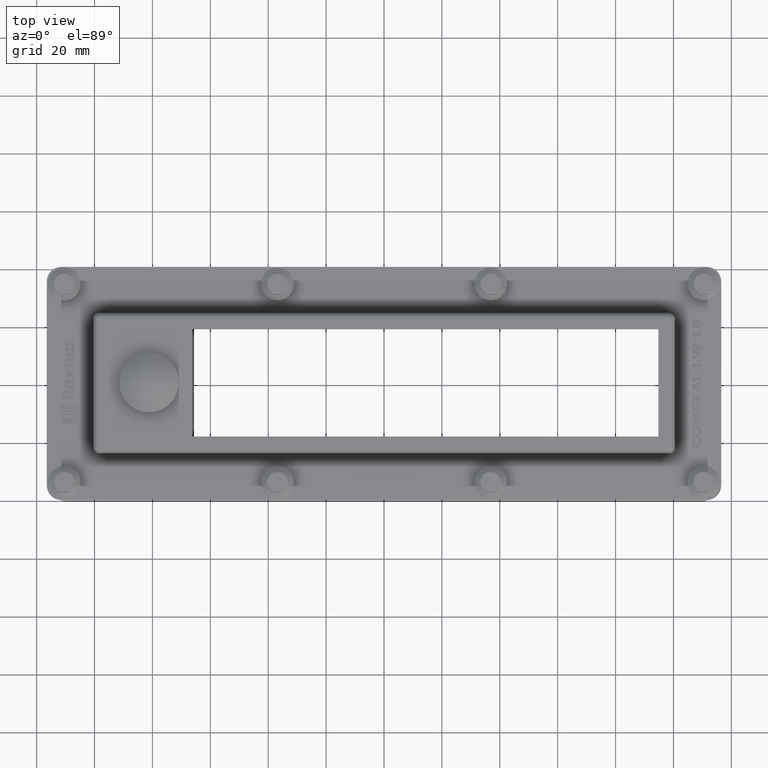
[diagram: clean part render]
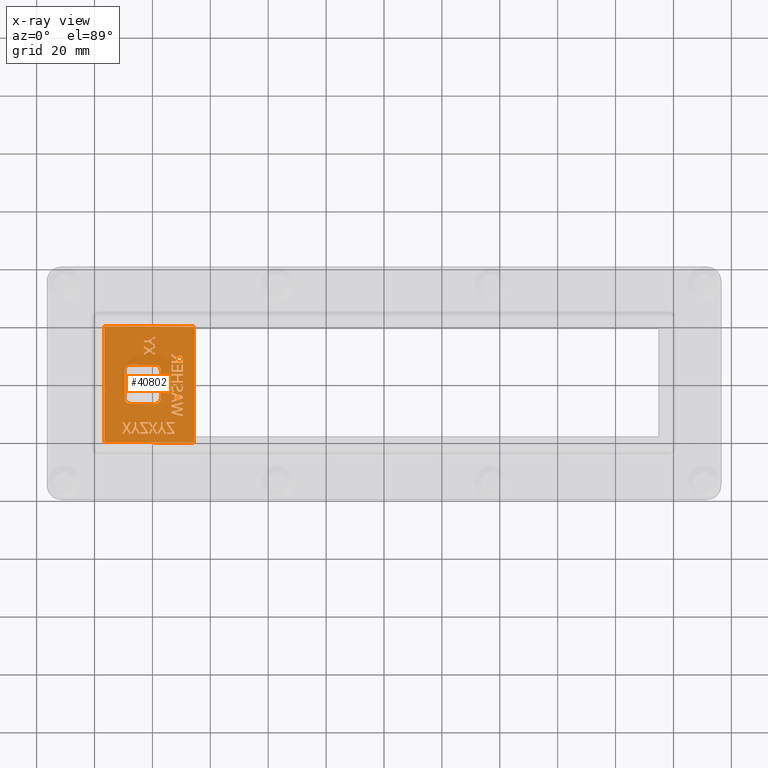
[diagram: x-ray — body ghosted, one internal face saturated and labeled with its STEP entity id]
A machine part, top view, then the same camera in x-ray: the body is ghosted and one INTERNAL B-rep face — a face not visible from any outside direction — is saturated and labeled: STEP entity #40802.
In plain terms, the highlighted planar face has unit normal (-0.2672, 0, -0.9636).
Its self-contained STEP definition (entity closure, byte-faithful):
#35229=CARTESIAN_POINT('',(-8.669368202334669,9.286606070014777,-15.59278335462421));
#35230=VERTEX_POINT('',#35229);
#35237=CARTESIAN_POINT('',(-9.93354974467325,7.749265428928553,-15.18085417135361));
#35238=VERTEX_POINT('',#35237);
#35239=CARTESIAN_POINT('',(-9.93354974467325,7.749265428928553,-15.18085417135361));
#35240=DIRECTION('',(0.621968436201278,0.756360793463459,-0.202666263795098));
#35241=VECTOR('',#35240,2.032549352600064);
#35242=LINE('',#35239,#35241);
#35243=EDGE_CURVE('',#35238,#35230,#35242,.T.);
#35267=CARTESIAN_POINT('',(-8.059967869104785,9.286606070014777,-15.59278335462421));
#35268=VERTEX_POINT('',#35267);
#35275=CARTESIAN_POINT('',(-8.669368202334667,9.286606070014777,-15.59278335462421));
#35276=DIRECTION('',(1.0,0.0,0.0));
#35277=VECTOR('',#35276,0.609400333229882);
#35278=LINE('',#35275,#35277);
#35279=EDGE_CURVE('',#35230,#35268,#35278,.T.);
#35298=CARTESIAN_POINT('',(-8.059967869104785,7.749265428928553,-15.18085417135361));
#35299=VERTEX_POINT('',#35298);
#35306=CARTESIAN_POINT('',(-8.059967869104785,9.286606070014781,-15.59278335462421));
#35307=DIRECTION('',(0.0,-0.965925826289068,0.258819045102521));
#35308=VECTOR('',#35307,1.591572146892936);
#35309=LINE('',#35306,#35308);
#35310=EDGE_CURVE('',#35268,#35299,#35309,.T.);
#35329=CARTESIAN_POINT('',(-7.528363323095739,7.749265428928553,-15.18085417135361));
#35330=VERTEX_POINT('',#35329);
#35337=CARTESIAN_POINT('',(-8.059967869104785,7.749265428928553,-15.18085417135361));
#35338=DIRECTION('',(1.0,0.0,0.0));
#35339=VECTOR('',#35338,0.531604546009046);
#35340=LINE('',#35337,#35339);
#35341=EDGE_CURVE('',#35299,#35330,#35340,.T.);
#35360=CARTESIAN_POINT('',(-7.528363323095739,11.612968791658492,-16.216130367190512));
#35361=VERTEX_POINT('',#35360);
#35368=CARTESIAN_POINT('',(-7.528363323095739,7.749265428928554,-15.180854171353609));
#35369=DIRECTION('',(0.0,0.965925826289068,-0.258819045102522));
#35370=VECTOR('',#35369,4.000000059604645);
#35371=LINE('',#35368,#35370);
#35372=EDGE_CURVE('',#35330,#35361,#35371,.T.);
#35391=CARTESIAN_POINT('',(-8.559157503771818,11.612968791658492,-16.216130367190512));
#35392=VERTEX_POINT('',#35391);
#35399=CARTESIAN_POINT('',(-7.528363323095739,11.612968791658488,-16.216130367190512));
#35400=DIRECTION('',(-1.0,0.0,0.0));
#35401=VECTOR('',#35400,1.030794180676079);
#35402=LINE('',#35399,#35401);
#35403=EDGE_CURVE('',#35361,#35392,#35402,.T.);
#35427=CARTESIAN_POINT('',(-9.576985719911084,11.409451191514695,-16.161597990586461));
#35428=VERTEX_POINT('',#35427);
#35435=CARTESIAN_POINT('',(-8.559157503771818,11.612968791658492,-16.216130367190512));
#35436=CARTESIAN_POINT('',(-8.902755563997173,11.612968791658492,-16.216130367190512));
#35437=CARTESIAN_POINT('',(-9.366288796187989,11.54095487160761,-16.196834295469074));
#35438=CARTESIAN_POINT('',(-9.576985719911084,11.409451191514695,-16.161597990586461));
#35439=QUASI_UNIFORM_CURVE('',2,(#35435,#35436,#35437,#35438),.UNSPECIFIED.,.F.,.U.);
#35440=EDGE_CURVE('',#35392,#35428,#35439,.T.);
#35464=CARTESIAN_POINT('',(-10.030794478699296,10.564070390917379,-15.935078887769631));
#35465=VERTEX_POINT('',#35464);
#35472=CARTESIAN_POINT('',(-9.576985719911084,11.409451191514695,-16.161597990586461));
#35473=CARTESIAN_POINT('',(-9.787682643634184,11.277947511421779,-16.126361685703841));
#35474=CARTESIAN_POINT('',(-10.030794478699296,10.867781271131971,-16.016457972855676));
#35475=CARTESIAN_POINT('',(-10.030794478699296,10.564070390917379,-15.935078887769635));
#35476=QUASI_UNIFORM_CURVE('',2,(#35472,#35473,#35474,#35475),.UNSPECIFIED.,.F.,.U.);
#35477=EDGE_CURVE('',#35428,#35465,#35476,.T.);
#35501=CARTESIAN_POINT('',(-9.200972748343714,9.430633910116541,-15.631375498067076));
#35502=VERTEX_POINT('',#35501);
#35509=CARTESIAN_POINT('',(-10.030794478699296,10.564070390917379,-15.935078887769635));
#35510=CARTESIAN_POINT('',(-10.030794478699296,10.141379990618722,-15.821819336361219));
#35511=CARTESIAN_POINT('',(-9.58346870217949,9.568399670213882,-15.668289722229819));
#35512=CARTESIAN_POINT('',(-9.200972748343714,9.430633910116541,-15.631375498067076));
#35513=QUASI_UNIFORM_CURVE('',2,(#35509,#35510,#35511,#35512),.UNSPECIFIED.,.F.,.U.);
#35514=EDGE_CURVE('',#35465,#35502,#35513,.T.);
#35533=CARTESIAN_POINT('',(-10.623987356258166,7.749265428928553,-15.18085417135361));
#35534=VERTEX_POINT('',#35533);
#35541=CARTESIAN_POINT('',(-9.200972748343714,9.430633910116541,-15.631375498067074));
#35542=DIRECTION('',(-0.632923695833511,-0.747833470754824,0.200381374561719));
#35543=VECTOR('',#35542,2.248319374487082);
#35544=LINE('',#35541,#35543);
#35545=EDGE_CURVE('',#35502,#35534,#35544,.T.);
#35563=CARTESIAN_POINT('',(-10.623987356258166,7.749265428928553,-15.18085417135361));
#35564=DIRECTION('',(1.0,0.0,0.0));
#35565=VECTOR('',#35564,0.690437611584915);
#35566=LINE('',#35563,#35565);
#35567=EDGE_CURVE('',#35534,#35238,#35566,.T.);
#35616=CARTESIAN_POINT('',(-6.944894918939473,11.612968791658492,-16.216130367190512));
#35617=VERTEX_POINT('',#35616);
#35624=CARTESIAN_POINT('',(-4.442463763335915,11.612968791658492,-16.216130367190512));
#35625=VERTEX_POINT('',#35624);
#35626=CARTESIAN_POINT('',(-4.442463763335915,11.612968791658488,-16.216130367190512));
#35627=DIRECTION('',(-1.0,0.0,0.0));
#35628=VECTOR('',#35627,2.502431155603557);
#35629=LINE('',#35626,#35628);
#35630=EDGE_CURVE('',#35625,#35617,#35629,.T.);
#35654=CARTESIAN_POINT('',(-6.944894918939473,11.155836951335498,-16.093642259741411));
#35655=VERTEX_POINT('',#35654);
#35662=CARTESIAN_POINT('',(-6.944894918939473,11.612968791658492,-16.216130367190509));
#35663=DIRECTION('',(0.0,-0.965925826289069,0.258819045102517));
#35664=VECTOR('',#35663,0.473257705593421);
#35665=LINE('',#35662,#35664);
#35666=EDGE_CURVE('',#35617,#35655,#35665,.T.);
#35685=CARTESIAN_POINT('',(-4.974068309344961,11.155836951335498,-16.093642259741411));
#35686=VERTEX_POINT('',#35685);
#35693=CARTESIAN_POINT('',(-6.944894918939472,11.155836951335496,-16.093642259741411));
#35694=DIRECTION('',(1.0,0.0,0.0));
#35695=VECTOR('',#35694,1.970826609594511);
#35696=LINE('',#35693,#35695);
#35697=EDGE_CURVE('',#35655,#35686,#35696,.T.);
#35716=CARTESIAN_POINT('',(-4.974068309344961,10.097545430587754,-15.810073901400347));
#35717=VERTEX_POINT('',#35716);
#35724=CARTESIAN_POINT('',(-4.974068309344961,11.155836951335498,-16.093642259741415));
#35725=DIRECTION('',(0.0,-0.965925826289068,0.258819045102522));
#35726=VECTOR('',#35725,1.095624003360103);
#35727=LINE('',#35724,#35726);
#35728=EDGE_CURVE('',#35686,#35717,#35727,.T.);
#35747=CARTESIAN_POINT('',(-6.811993782437211,10.097545430587754,-15.810073901400347));
#35748=VERTEX_POINT('',#35747);
#35755=CARTESIAN_POINT('',(-4.974068309344961,10.097545430587751,-15.810073901400347));
#35756=DIRECTION('',(-1.0,0.0,0.0));
#35757=VECTOR('',#35756,1.83792547309225);
#35758=LINE('',#35755,#35757);
#35759=EDGE_CURVE('',#35717,#35748,#35758,.T.);
#35778=CARTESIAN_POINT('',(-6.811993782437211,9.640413590264764,-15.68758579395125));
#35779=VERTEX_POINT('',#35778);
#35786=CARTESIAN_POINT('',(-6.811993782437211,10.097545430587754,-15.810073901400349));
#35787=DIRECTION('',(0.0,-0.965925826289069,0.258819045102519));
#35788=VECTOR('',#35787,0.473257705593417);
#35789=LINE('',#35786,#35788);
#35790=EDGE_CURVE('',#35748,#35779,#35789,.T.);
#35809=CARTESIAN_POINT('',(-4.974068309344961,9.640413590264764,-15.68758579395125));
#35810=VERTEX_POINT('',#35809);
#35817=CARTESIAN_POINT('',(-6.811993782437212,9.640413590264764,-15.68758579395125));
#35818=DIRECTION('',(1.0,0.0,0.0));
#35819=VECTOR('',#35818,1.837925473092251);
#35820=LINE('',#35817,#35819);
#35821=EDGE_CURVE('',#35779,#35810,#35820,.T.);
#35840=CARTESIAN_POINT('',(-4.974068309344961,8.206397269251546,-15.303342278802708));
#35841=VERTEX_POINT('',#35840);
#35848=CARTESIAN_POINT('',(-4.974068309344961,9.640413590264766,-15.68758579395125));
#35849=DIRECTION('',(0.0,-0.965925826289068,0.258819045102521));
#35850=VECTOR('',#35849,1.484602939464286);
#35851=LINE('',#35848,#35850);
#35852=EDGE_CURVE('',#35810,#35841,#35851,.T.);
#35871=CARTESIAN_POINT('',(-6.944894918939473,8.206397269251546,-15.303342278802708));
#35872=VERTEX_POINT('',#35871);
#35879=CARTESIAN_POINT('',(-4.974068309344961,8.206397269251545,-15.30334227880271));
#35880=DIRECTION('',(-1.0,0.0,0.0));
#35881=VECTOR('',#35880,1.970826609594512);
#35882=LINE('',#35879,#35881);
#35883=EDGE_CURVE('',#35841,#35872,#35882,.T.);
#35902=CARTESIAN_POINT('',(-6.944894918939473,7.749265428928553,-15.18085417135361));
#35903=VERTEX_POINT('',#35902);
#35910=CARTESIAN_POINT('',(-6.944894918939473,8.206397269251546,-15.30334227880271));
#35911=DIRECTION('',(0.0,-0.965925826289068,0.258819045102521));
#35912=VECTOR('',#35911,0.47325770559342);
#35913=LINE('',#35910,#35912);
#35914=EDGE_CURVE('',#35872,#35903,#35913,.T.);
#35933=CARTESIAN_POINT('',(-4.442463763335915,7.749265428928553,-15.18085417135361));
#35934=VERTEX_POINT('',#35933);
#35941=CARTESIAN_POINT('',(-6.944894918939472,7.749265428928553,-15.18085417135361));
#35942=DIRECTION('',(1.0,0.0,0.0));
#35943=VECTOR('',#35942,2.502431155603556);
#35944=LINE('',#35941,#35943);
#35945=EDGE_CURVE('',#35903,#35934,#35944,.T.);
#35963=CARTESIAN_POINT('',(-4.442463763335915,7.749265428928554,-15.180854171353609));
#35964=DIRECTION('',(0.0,0.965925826289068,-0.258819045102522));
#35965=VECTOR('',#35964,4.000000059604645);
#35966=LINE('',#35963,#35965);
#35967=EDGE_CURVE('',#35934,#35625,#35966,.T.);
#36008=CARTESIAN_POINT('',(-3.100486433776495,9.640413590264764,-15.68758579395125));
#36009=VERTEX_POINT('',#36008);
#36016=CARTESIAN_POINT('',(-3.100486433776495,7.749265428928553,-15.18085417135361));
#36017=VERTEX_POINT('',#36016);
#36018=CARTESIAN_POINT('',(-3.100486433776495,7.749265428928554,-15.180854171353609));
#36019=DIRECTION('',(0.0,0.965925826289068,-0.258819045102521));
#36020=VECTOR('',#36019,1.957860645057705);
#36021=LINE('',#36018,#36020);
#36022=EDGE_CURVE('',#36017,#36009,#36021,.T.);
#36046=CARTESIAN_POINT('',(-1.259319469550047,9.640413590264764,-15.68758579395125));
#36047=VERTEX_POINT('',#36046);
#36054=CARTESIAN_POINT('',(-3.100486433776496,9.640413590264764,-15.68758579395125));
#36055=DIRECTION('',(1.0,0.0,0.0));
#36056=VECTOR('',#36055,1.841166964226449);
#36057=LINE('',#36054,#36056);
#36058=EDGE_CURVE('',#36009,#36047,#36057,.T.);
#36077=CARTESIAN_POINT('',(-1.259319469550047,7.749265428928553,-15.18085417135361));
#36078=VERTEX_POINT('',#36077);
#36085=CARTESIAN_POINT('',(-1.259319469550047,9.640413590264766,-15.68758579395125));
#36086=DIRECTION('',(0.0,-0.965925826289068,0.258819045102521));
#36087=VECTOR('',#36086,1.957860645057705);
#36088=LINE('',#36085,#36087);
#36089=EDGE_CURVE('',#36047,#36078,#36088,.T.);
#36108=CARTESIAN_POINT('',(-0.727714923541001,7.749265428928553,-15.18085417135361));
#36109=VERTEX_POINT('',#36108);
#36116=CARTESIAN_POINT('',(-1.259319469550047,7.749265428928553,-15.18085417135361));
#36117=DIRECTION('',(1.0,0.0,0.0));
#36118=VECTOR('',#36117,0.531604546009046);
#36119=LINE('',#36116,#36118);
#36120=EDGE_CURVE('',#36078,#36109,#36119,.T.);
#36139=CARTESIAN_POINT('',(-0.727714923541001,11.612968791658492,-16.216130367190512));
#36140=VERTEX_POINT('',#36139);
#36147=CARTESIAN_POINT('',(-0.727714923541001,7.749265428928554,-15.180854171353609));
#36148=DIRECTION('',(0.0,0.965925826289068,-0.258819045102522));
#36149=VECTOR('',#36148,4.000000059604645);
#36150=LINE('',#36147,#36149);
#36151=EDGE_CURVE('',#36109,#36140,#36150,.T.);
#36170=CARTESIAN_POINT('',(-1.259319469550047,11.612968791658492,-16.216130367190512));
#36171=VERTEX_POINT('',#36170);
#36178=CARTESIAN_POINT('',(-0.727714923541001,11.612968791658488,-16.216130367190512));
#36179=DIRECTION('',(-1.0,0.0,0.0));
#36180=VECTOR('',#36179,0.531604546009046);
#36181=LINE('',#36178,#36180);
#36182=EDGE_CURVE('',#36140,#36171,#36181,.T.);
#36201=CARTESIAN_POINT('',(-1.259319469550047,10.097545430587754,-15.810073901400347));
#36202=VERTEX_POINT('',#36201);
#36209=CARTESIAN_POINT('',(-1.259319469550047,11.612968791658492,-16.216130367190509));
#36210=DIRECTION('',(0.0,-0.965925826289068,0.25881904510252));
#36211=VECTOR('',#36210,1.568881708953525);
#36212=LINE('',#36209,#36211);
#36213=EDGE_CURVE('',#36171,#36202,#36212,.T.);
#36232=CARTESIAN_POINT('',(-3.100486433776495,10.097545430587754,-15.810073901400347));
#36233=VERTEX_POINT('',#36232);
#36240=CARTESIAN_POINT('',(-1.259319469550047,10.097545430587751,-15.810073901400347));
#36241=DIRECTION('',(-1.0,0.0,0.0));
#36242=VECTOR('',#36241,1.841166964226448);
#36243=LINE('',#36240,#36242);
#36244=EDGE_CURVE('',#36202,#36233,#36243,.T.);
#36263=CARTESIAN_POINT('',(-3.100486433776495,11.612968791658492,-16.216130367190512));
#36264=VERTEX_POINT('',#36263);
#36271=CARTESIAN_POINT('',(-3.100486433776495,10.097545430587754,-15.810073901400349));
#36272=DIRECTION('',(0.0,0.965925826289068,-0.258819045102522));
#36273=VECTOR('',#36272,1.568881708953524);
#36274=LINE('',#36271,#36273);
#36275=EDGE_CURVE('',#36233,#36264,#36274,.T.);
#36294=CARTESIAN_POINT('',(-3.632090979785541,11.612968791658492,-16.216130367190512));
#36295=VERTEX_POINT('',#36294);
#36302=CARTESIAN_POINT('',(-3.100486433776496,11.612968791658488,-16.216130367190512));
#36303=DIRECTION('',(-1.0,0.0,0.0));
#36304=VECTOR('',#36303,0.531604546009046);
#36305=LINE('',#36302,#36304);
#36306=EDGE_CURVE('',#36264,#36295,#36305,.T.);
#36325=CARTESIAN_POINT('',(-3.632090979785541,7.749265428928553,-15.18085417135361));
#36326=VERTEX_POINT('',#36325);
#36333=CARTESIAN_POINT('',(-3.632090979785541,11.612968791658492,-16.216130367190509));
#36334=DIRECTION('',(0.0,-0.965925826289068,0.258819045102521));
#36335=VECTOR('',#36334,4.000000059604645);
#36336=LINE('',#36333,#36335);
#36337=EDGE_CURVE('',#36295,#36326,#36336,.T.);
#36355=CARTESIAN_POINT('',(-3.632090979785541,7.749265428928553,-15.18085417135361));
#36356=DIRECTION('',(1.0,0.0,0.0));
#36357=VECTOR('',#36356,0.531604546009046);
#36358=LINE('',#36355,#36357);
#36359=EDGE_CURVE('',#36326,#36017,#36358,.T.);
#36400=CARTESIAN_POINT('',(2.533225157465699,8.625956629547989,-15.415762870571058));
#36401=VERTEX_POINT('',#36400);
#36408=CARTESIAN_POINT('',(2.533225157465699,7.980962389092259,-15.242937184718222));
#36409=VERTEX_POINT('',#36408);
#36410=CARTESIAN_POINT('',(2.533225157465698,7.980962389092259,-15.242937184718222));
#36411=DIRECTION('',(0.0,0.965925826289069,-0.25881904510252));
#36412=VECTOR('',#36411,0.667747173645509);
#36413=LINE('',#36410,#36412);
#36414=EDGE_CURVE('',#36409,#36401,#36413,.T.);
#36438=CARTESIAN_POINT('',(2.494327263855283,8.625956629547989,-15.415762870571058));
#36439=VERTEX_POINT('',#36438);
#36446=CARTESIAN_POINT('',(2.533225157465699,8.625956629547988,-15.41576287057106));
#36447=DIRECTION('',(-1.0,0.0,0.0));
#36448=VECTOR('',#36447,0.038897893610415);
#36449=LINE('',#36446,#36448);
#36450=EDGE_CURVE('',#36401,#36439,#36449,.T.);
#36474=CARTESIAN_POINT('',(1.259319141724513,8.124990229194026,-15.281529328161088));
#36475=VERTEX_POINT('',#36474);
#36482=CARTESIAN_POINT('',(2.494327263855283,8.625956629547989,-15.415762870571058));
#36483=CARTESIAN_POINT('',(2.23176648198496,8.387997589379857,-15.352001937926323));
#36484=CARTESIAN_POINT('',(1.567260799473655,8.124990229194026,-15.281529328161088));
#36485=CARTESIAN_POINT('',(1.259319141724513,8.124990229194026,-15.281529328161088));
#36486=QUASI_UNIFORM_CURVE('',2,(#36482,#36483,#36484,#36485),.UNSPECIFIED.,.F.,.U.);
#36487=EDGE_CURVE('',#36439,#36475,#36486,.T.);
#36511=CARTESIAN_POINT('',(0.367909079819102,8.769984469649753,-15.454355014013924));
#36512=VERTEX_POINT('',#36511);
#36519=CARTESIAN_POINT('',(1.259319141724513,8.124990229194026,-15.281529328161088));
#36520=CARTESIAN_POINT('',(0.818476347473109,8.124990229194026,-15.281529328161088));
#36521=CARTESIAN_POINT('',(0.367909079819102,8.478797749444009,-15.376331767488129));
#36522=CARTESIAN_POINT('',(0.367909079819102,8.769984469649753,-15.454355014013924));
#36523=QUASI_UNIFORM_CURVE('',2,(#36519,#36520,#36521,#36522),.UNSPECIFIED.,.F.,.U.);
#36524=EDGE_CURVE('',#36475,#36512,#36523,.T.);
#36548=CARTESIAN_POINT('',(0.860615732217729,9.361751030067872,-15.612918385985704));
#36549=VERTEX_POINT('',#36548);
#36556=CARTESIAN_POINT('',(0.367909079819102,8.769984469649753,-15.454355014013924));
#36557=CARTESIAN_POINT('',(0.367909079819102,9.001681429813457,-15.516438027378536));
#36558=CARTESIAN_POINT('',(0.604537932615812,9.28973711001699,-15.59362231426427));
#36559=CARTESIAN_POINT('',(0.860615732217729,9.361751030067872,-15.612918385985704));
#36560=QUASI_UNIFORM_CURVE('',2,(#36556,#36557,#36558,#36559),.UNSPECIFIED.,.F.,.U.);
#36561=EDGE_CURVE('',#36512,#36549,#36560,.T.);
#36585=CARTESIAN_POINT('',(1.583468255144662,9.537089270191753,-15.659900125829193));
#36586=VERTEX_POINT('',#36585);
#36593=CARTESIAN_POINT('',(0.860615732217729,9.361751030067872,-15.612918385985704));
#36594=CARTESIAN_POINT('',(1.045380726867213,9.411847670103267,-15.626341740226701));
#36595=CARTESIAN_POINT('',(1.353322384616356,9.480730550151936,-15.644798852308071));
#36596=CARTESIAN_POINT('',(1.583468255144662,9.537089270191753,-15.659900125829193));
#36597=QUASI_UNIFORM_CURVE('',2,(#36593,#36594,#36595,#36596),.UNSPECIFIED.,.F.,.U.);
#36598=EDGE_CURVE('',#36549,#36586,#36597,.T.);
#36622=CARTESIAN_POINT('',(2.244732446521767,9.878372630432898,-15.751346726595985));
#36623=VERTEX_POINT('',#36622);
#36630=CARTESIAN_POINT('',(1.583468255144662,9.537089270191753,-15.659900125829193));
#36631=CARTESIAN_POINT('',(1.790923687733559,9.590316950229365,-15.674162439710253));
#36632=CARTESIAN_POINT('',(2.118314292287908,9.749999990342193,-15.71694938135343));
#36633=CARTESIAN_POINT('',(2.244732446521767,9.878372630432896,-15.751346726595985));
#36634=QUASI_UNIFORM_CURVE('',2,(#36630,#36631,#36632,#36633),.UNSPECIFIED.,.F.,.U.);
#36635=EDGE_CURVE('',#36586,#36623,#36634,.T.);
#36659=CARTESIAN_POINT('',(2.504051737257886,10.576594550926227,-15.938434726329884));
#36660=VERTEX_POINT('',#36659);
#36667=CARTESIAN_POINT('',(2.244732446521767,9.878372630432896,-15.751346726595985));
#36668=CARTESIAN_POINT('',(2.367909109621424,10.006745270523595,-15.785744071838542));
#36669=CARTESIAN_POINT('',(2.504051737257886,10.351159670766945,-15.878029632245397));
#36670=CARTESIAN_POINT('',(2.504051737257886,10.576594550926227,-15.938434726329884));
#36671=QUASI_UNIFORM_CURVE('',2,(#36667,#36668,#36669,#36670),.UNSPECIFIED.,.F.,.U.);
#36672=EDGE_CURVE('',#36623,#36660,#36671,.T.);
#36696=CARTESIAN_POINT('',(1.158832916564268,11.681851671707161,-16.23458747927188));
#36697=VERTEX_POINT('',#36696);
#36704=CARTESIAN_POINT('',(2.504051737257886,10.576594550926227,-15.938434726329884));
#36705=CARTESIAN_POINT('',(2.504051737257886,11.046250551258069,-16.064278672339231));
#36706=CARTESIAN_POINT('',(1.745542811854737,11.681851671707161,-16.23458747927188));
#36707=CARTESIAN_POINT('',(1.158832916564268,11.681851671707161,-16.23458747927188));
#36708=QUASI_UNIFORM_CURVE('',2,(#36704,#36705,#36706,#36707),.UNSPECIFIED.,.F.,.U.);
#36709=EDGE_CURVE('',#36660,#36697,#36708,.T.);
#36733=CARTESIAN_POINT('',(-0.03079432968768,11.431368471530181,-16.167470708066894));
#36734=VERTEX_POINT('',#36733);
#36741=CARTESIAN_POINT('',(1.158832916564268,11.681851671707161,-16.23458747927188));
#36742=CARTESIAN_POINT('',(0.821717838607312,11.681851671707161,-16.23458747927188));
#36743=CARTESIAN_POINT('',(0.225283469914235,11.553479031616458,-16.200190134029327));
#36744=CARTESIAN_POINT('',(-0.03079432968768,11.431368471530181,-16.167470708066894));
#36745=QUASI_UNIFORM_CURVE('',2,(#36741,#36742,#36743,#36744),.UNSPECIFIED.,.F.,.U.);
#36746=EDGE_CURVE('',#36697,#36734,#36745,.T.);
#36765=CARTESIAN_POINT('',(-0.03079432968768,10.817684631096576,-16.003034618614681));
#36766=VERTEX_POINT('',#36765);
#36773=CARTESIAN_POINT('',(-0.03079432968768,11.431368471530181,-16.167470708066897));
#36774=DIRECTION('',(0.0,-0.965925826289069,0.258819045102519));
#36775=VECTOR('',#36774,0.635332262303493);
#36776=LINE('',#36773,#36775);
#36777=EDGE_CURVE('',#36734,#36766,#36776,.T.);
#36796=CARTESIAN_POINT('',(0.008103563922734,10.817684631096576,-16.003034618614681));
#36797=VERTEX_POINT('',#36796);
#36804=CARTESIAN_POINT('',(-0.03079432968768,10.817684631096574,-16.003034618614681));
#36805=DIRECTION('',(1.0,0.0,0.0));
#36806=VECTOR('',#36805,0.038897893610415);
#36807=LINE('',#36804,#36806);
#36808=EDGE_CURVE('',#36766,#36797,#36807,.T.);
#36832=CARTESIAN_POINT('',(1.123176514088051,11.237243991393019,-16.115455210383033));
#36833=VERTEX_POINT('',#36832);
#36840=CARTESIAN_POINT('',(0.008103563922734,10.817684631096576,-16.003034618614681));
#36841=CARTESIAN_POINT('',(0.199351540840624,10.986760791216037,-16.048338439178046));
#36842=CARTESIAN_POINT('',(0.795785909533699,11.237243991393019,-16.115455210383033));
#36843=CARTESIAN_POINT('',(1.123176514088051,11.237243991393019,-16.115455210383033));
#36844=QUASI_UNIFORM_CURVE('',2,(#36840,#36841,#36842,#36843),.UNSPECIFIED.,.F.,.U.);
#36845=EDGE_CURVE('',#36797,#36833,#36844,.T.);
#36869=CARTESIAN_POINT('',(1.949756753309431,10.629822230963841,-15.952697040210941));
#36870=VERTEX_POINT('',#36869);
#36877=CARTESIAN_POINT('',(1.123176514088051,11.237243991393019,-16.115455210383033));
#36878=CARTESIAN_POINT('',(1.49270650338702,11.237243991393019,-16.115455210383033));
#36879=CARTESIAN_POINT('',(1.949756753309431,10.902222711156305,-16.025686528896365));
#36880=CARTESIAN_POINT('',(1.949756753309431,10.629822230963839,-15.952697040210941));
#36881=QUASI_UNIFORM_CURVE('',2,(#36877,#36878,#36879,#36880),.UNSPECIFIED.,.F.,.U.);
#36882=EDGE_CURVE('',#36833,#36870,#36881,.T.);
#36906=CARTESIAN_POINT('',(1.427876680702991,10.028662550539082,-15.791616789318979));
#36907=VERTEX_POINT('',#36906);
#36914=CARTESIAN_POINT('',(1.949756753309431,10.629822230963839,-15.952697040210941));
#36915=CARTESIAN_POINT('',(1.949756753309431,10.385601110791285,-15.887258188286083));
#36916=CARTESIAN_POINT('',(1.680712989170707,10.094414390585538,-15.809234941760284));
#36917=CARTESIAN_POINT('',(1.427876680702991,10.028662550539082,-15.791616789318979));
#36918=QUASI_UNIFORM_CURVE('',2,(#36914,#36915,#36916,#36917),.UNSPECIFIED.,.F.,.U.);
#36919=EDGE_CURVE('',#36870,#36907,#36918,.T.);
#36943=CARTESIAN_POINT('',(0.607779423750012,9.825144950395286,-15.737084412714925));
#36944=VERTEX_POINT('',#36943);
#36951=CARTESIAN_POINT('',(1.427876680702991,10.028662550539082,-15.791616789318979));
#36952=CARTESIAN_POINT('',(1.259319141724513,9.984827990508114,-15.779871354358104));
#36953=CARTESIAN_POINT('',(0.769853980460087,9.87211055042847,-15.749668807315862));
#36954=CARTESIAN_POINT('',(0.607779423750012,9.825144950395286,-15.737084412714925));
#36955=QUASI_UNIFORM_CURVE('',2,(#36951,#36952,#36953,#36954),.UNSPECIFIED.,.F.,.U.);
#36956=EDGE_CURVE('',#36907,#36944,#36955,.T.);
#36980=CARTESIAN_POINT('',(-0.186385904129356,8.851391509707272,-15.476167964655545));
#36981=VERTEX_POINT('',#36980);
#36988=CARTESIAN_POINT('',(0.607779423750012,9.825144950395286,-15.737084412714925));
#36989=CARTESIAN_POINT('',(0.196110049706424,9.703034390309009,-15.704364986752495));
#36990=CARTESIAN_POINT('',(-0.186385904129356,9.211461109961681,-15.57264832326271));
#36991=CARTESIAN_POINT('',(-0.186385904129356,8.851391509707272,-15.476167964655545));
#36992=QUASI_UNIFORM_CURVE('',2,(#36988,#36989,#36990,#36991),.UNSPECIFIED.,.F.,.U.);
#36993=EDGE_CURVE('',#36944,#36981,#36992,.T.);
#37017=CARTESIAN_POINT('',(0.176661102901214,8.031059029127658,-15.256360538959219));
#37018=VERTEX_POINT('',#37017);
#37025=CARTESIAN_POINT('',(-0.186385904129356,8.851391509707272,-15.476167964655545));
#37026=CARTESIAN_POINT('',(-0.186385904129356,8.622825589545776,-15.414923910930995));
#37027=CARTESIAN_POINT('',(0.004862072788534,8.18447998923606,-15.29746956132227));
#37028=CARTESIAN_POINT('',(0.176661102901214,8.031059029127658,-15.256360538959219));
#37029=QUASI_UNIFORM_CURVE('',2,(#37025,#37026,#37027,#37028),.UNSPECIFIED.,.F.,.U.);
#37030=EDGE_CURVE('',#36981,#37018,#37029,.T.);
#37054=CARTESIAN_POINT('',(1.220421248114094,7.680382548879883,-15.162397059272239));
#37055=VERTEX_POINT('',#37054);
#37062=CARTESIAN_POINT('',(0.176661102901214,8.031059029127658,-15.256360538959219));
#37063=CARTESIAN_POINT('',(0.367909079819102,7.861982869008193,-15.211056718395852));
#37064=CARTESIAN_POINT('',(0.854132749949326,7.680382548879883,-15.162397059272239));
#37065=CARTESIAN_POINT('',(1.220421248114094,7.680382548879883,-15.162397059272239));
#37066=QUASI_UNIFORM_CURVE('',2,(#37062,#37063,#37064,#37065),.UNSPECIFIED.,.F.,.U.);
#37067=EDGE_CURVE('',#37018,#37055,#37066,.T.);
#37090=CARTESIAN_POINT('',(1.220421248114094,7.680382548879883,-15.162397059272239));
#37091=CARTESIAN_POINT('',(1.654781060097095,7.680382548879883,-15.162397059272239));
#37092=CARTESIAN_POINT('',(2.264181393326976,7.855720789003771,-15.209378799115729));
#37093=CARTESIAN_POINT('',(2.533225157465699,7.980962389092259,-15.242937184718222));
#37094=QUASI_UNIFORM_CURVE('',2,(#37090,#37091,#37092,#37093),.UNSPECIFIED.,.F.,.U.);
#37095=EDGE_CURVE('',#37055,#36409,#37094,.T.);
#37144=CARTESIAN_POINT('',(12.999999940395357,4.574840963568181,-14.330269699426699));
#37145=VERTEX_POINT('',#37144);
#37152=CARTESIAN_POINT('',(14.769854099669374,4.574840963568181,-14.330269699426697));
#37153=VERTEX_POINT('',#37152);
#37154=CARTESIAN_POINT('',(14.769854099669372,4.574840963568178,-14.330269699426697));
#37155=DIRECTION('',(-1.0,0.0,0.0));
#37156=VECTOR('',#37155,1.769854159274015);
#37157=LINE('',#37154,#37156);
#37158=EDGE_CURVE('',#37153,#37145,#37157,.T.);
#37182=CARTESIAN_POINT('',(12.999999940395357,4.06135040320537,-14.192680318456478));
#37183=VERTEX_POINT('',#37182);
#37190=CARTESIAN_POINT('',(12.999999940395357,4.574840963568181,-14.330269699426699));
#37191=DIRECTION('',(0.0,-0.965925826289068,0.258819045102521));
#37192=VECTOR('',#37191,0.531604546009042);
#37193=LINE('',#37190,#37192);
#37194=EDGE_CURVE('',#37145,#37183,#37193,.T.);
#37213=CARTESIAN_POINT('',(14.714748750387947,4.06135040320537,-14.192680318456476));
#37214=VERTEX_POINT('',#37213);
#37221=CARTESIAN_POINT('',(12.999999940395357,4.061350403205369,-14.192680318456476));
#37222=DIRECTION('',(1.0,0.0,0.0));
#37223=VECTOR('',#37222,1.714748809992589);
#37224=LINE('',#37221,#37223);
#37225=EDGE_CURVE('',#37183,#37214,#37224,.T.);
#37236=CARTESIAN_POINT('',(16.994713628959207,2.75872701029083,-13.843643432283137));
#37237=VERTEX_POINT('',#37236);
#37246=CARTESIAN_POINT('',(14.714748750387953,4.061350403205369,-14.192680318456476));
#37247=DIRECTION('',(0.860707703064183,-0.491752306805591,0.1317646334847));
#37248=VECTOR('',#37247,2.648942109446011);
#37249=LINE('',#37246,#37248);
#37250=EDGE_CURVE('',#37214,#37237,#37249,.T.);
#37277=CARTESIAN_POINT('',(15.23987031412859,4.321226723388985,-14.262313968581651));
#37278=VERTEX_POINT('',#37277);
#37285=CARTESIAN_POINT('',(17.0,3.325556002685484,-13.995524803041832));
#37286=VERTEX_POINT('',#37285);
#37287=CARTESIAN_POINT('',(16.999999999999996,3.325556002685486,-13.995524803041834));
#37288=DIRECTION('',(-0.862913061259437,0.488132935036139,-0.130794825741968));
#37289=VECTOR('',#37288,2.039753209092076);
#37290=LINE('',#37287,#37289);
#37291=EDGE_CURVE('',#37286,#37278,#37290,.T.);
#37315=CARTESIAN_POINT('',(17.0,5.335683684105761,-14.53413689196184));
#37316=VERTEX_POINT('',#37315);
#37323=CARTESIAN_POINT('',(15.239870314128591,4.321226723388986,-14.262313968581651));
#37324=DIRECTION('',(0.858746256029892,0.494941437504191,-0.132619158479947));
#37325=VECTOR('',#37324,2.049650491646675);
#37326=LINE('',#37323,#37325);
#37327=EDGE_CURVE('',#37278,#37316,#37326,.T.);
#37346=CARTESIAN_POINT('',(17.0,5.880484644490696,-14.680115869332685));
#37347=VERTEX_POINT('',#37346);
#37354=CARTESIAN_POINT('',(17.0,5.335683684105761,-14.534136891961841));
#37355=DIRECTION('',(0.0,0.965925826289068,-0.25881904510252));
#37356=VECTOR('',#37355,0.564019457351061);
#37357=LINE('',#37354,#37356);
#37358=EDGE_CURVE('',#37316,#37347,#37357,.T.);
#37376=CARTESIAN_POINT('',(17.0,5.880484644490696,-14.680115869332683));
#37377=DIRECTION('',(-0.855181135397279,-0.500667622378458,0.134153485092718));
#37378=VECTOR('',#37377,2.607805303486494);
#37379=LINE('',#37376,#37378);
#37380=EDGE_CURVE('',#37347,#37153,#37379,.T.);
#37400=CARTESIAN_POINT('',(15.029173390405489,1.553387361433338,-13.520673646766559));
#37401=VERTEX_POINT('',#37400);
#37408=CARTESIAN_POINT('',(16.994713628959211,2.758727010290828,-13.843643432283137));
#37409=DIRECTION('',(-0.844232761378656,-0.517713756347668,0.138720982923841));
#37410=VECTOR('',#37409,2.328197066581422);
#37411=LINE('',#37408,#37410);
#37412=EDGE_CURVE('',#37237,#37401,#37411,.T.);
#37422=CARTESIAN_POINT('',(17.0,2.207774721895703,-13.696016211539582));
#37423=VERTEX_POINT('',#37422);
#37424=CARTESIAN_POINT('',(17.0,2.207774721895704,-13.696016211539586));
#37425=DIRECTION('',(0.0,0.965925826289068,-0.25881904510252));
#37426=VECTOR('',#37425,1.157212334909932);
#37427=LINE('',#37424,#37426);
#37428=EDGE_CURVE('',#37423,#37286,#37427,.T.);
#37463=CARTESIAN_POINT('',(14.594813578422492,1.234021281207687,-13.435099763480203));
#37464=VERTEX_POINT('',#37463);
#37471=CARTESIAN_POINT('',(12.999999940395357,2.17333328187137,-13.6867876554989));
#37472=VERTEX_POINT('',#37471);
#37473=CARTESIAN_POINT('',(12.999999940395353,2.173333281871372,-13.6867876554989));
#37474=DIRECTION('',(0.853796175794035,-0.502868156455063,0.134743116421462));
#37475=VECTOR('',#37474,1.867909090297758);
#37476=LINE('',#37473,#37475);
#37477=EDGE_CURVE('',#37472,#37464,#37476,.T.);
#37501=CARTESIAN_POINT('',(12.999999940395355,0.275923040530737,-13.178378113621134));
#37502=VERTEX_POINT('',#37501);
#37509=CARTESIAN_POINT('',(14.594813578422496,1.234021281207686,-13.435099763480205));
#37510=DIRECTION('',(-0.849159811848738,-0.51014018339615,0.136691650167663));
#37511=VECTOR('',#37510,1.878107766964394);
#37512=LINE('',#37509,#37511);
#37513=EDGE_CURVE('',#37464,#37502,#37512,.T.);
#37532=CARTESIAN_POINT('',(12.999999940395355,-0.278271039860836,-13.029882257330103));
#37533=VERTEX_POINT('',#37532);
#37540=CARTESIAN_POINT('',(12.999999940395357,0.275923040530738,-13.178378113621132));
#37541=DIRECTION('',(0.0,-0.965925826289069,0.258819045102519));
#37542=VECTOR('',#37541,0.573743930753666);
#37543=LINE('',#37540,#37542);
#37544=EDGE_CURVE('',#37502,#37533,#37543,.T.);
#37563=CARTESIAN_POINT('',(15.00324146133188,0.952227681008584,-13.359593395874594));
#37564=VERTEX_POINT('',#37563);
#37571=CARTESIAN_POINT('',(12.999999940395359,-0.278271039860838,-13.029882257330103));
#37572=DIRECTION('',(0.843830115736995,0.518325856964088,-0.138884994789697));
#37573=VECTOR('',#37572,2.373986758207734);
#37574=LINE('',#37571,#37573);
#37575=EDGE_CURVE('',#37533,#37564,#37574,.T.);
#37594=CARTESIAN_POINT('',(17.0,-0.240698559834289,-13.03994977301085));
#37595=VERTEX_POINT('',#37594);
#37602=CARTESIAN_POINT('',(15.003241461331877,0.952227681008583,-13.359593395874594));
#37603=DIRECTION('',(0.850471045146917,-0.508098103594211,0.136144476533854));
#37604=VECTOR('',#37603,2.34782659569931);
#37605=LINE('',#37602,#37604);
#37606=EDGE_CURVE('',#37564,#37595,#37605,.T.);
#37625=CARTESIAN_POINT('',(17.0,0.347936960581616,-13.197674185342567));
#37626=VERTEX_POINT('',#37625);
#37633=CARTESIAN_POINT('',(17.0,-0.240698559834288,-13.03994977301085));
#37634=DIRECTION('',(0.0,0.965925826289068,-0.258819045102521));
#37635=VECTOR('',#37634,0.609400333229879);
#37636=LINE('',#37633,#37635);
#37637=EDGE_CURVE('',#37595,#37626,#37636,.T.);
#37656=CARTESIAN_POINT('',(15.43435978218068,1.268462721232022,-13.444328319520888));
#37657=VERTEX_POINT('',#37656);
#37664=CARTESIAN_POINT('',(17.0,0.347936960581617,-13.197674185342567));
#37665=DIRECTION('',(-0.854198555614438,0.502230184306751,-0.134572172299528));
#37666=VECTOR('',#37665,1.832876217746734);
#37667=LINE('',#37664,#37666);
#37668=EDGE_CURVE('',#37626,#37657,#37667,.T.);
#37686=CARTESIAN_POINT('',(15.43435978218068,1.268462721232025,-13.444328319520888));
#37687=DIRECTION('',(0.849477082513831,0.509647113565715,-0.136559532504786));
#37688=VECTOR('',#37687,1.84306351524654);
#37689=LINE('',#37686,#37688);
#37690=EDGE_CURVE('',#37657,#37423,#37689,.T.);
#37709=CARTESIAN_POINT('',(12.999999940395357,2.761968802287278,-13.844512067830617));
#37710=VERTEX_POINT('',#37709);
#37717=CARTESIAN_POINT('',(15.029173390405486,1.553387361433339,-13.520673646766561));
#37718=DIRECTION('',(-0.851191118645097,0.506971835556508,-0.135842693922691));
#37719=VECTOR('',#37718,2.383922253841316);
#37720=LINE('',#37717,#37719);
#37721=EDGE_CURVE('',#37401,#37710,#37720,.T.);
#37739=CARTESIAN_POINT('',(12.999999940395357,2.761968802287278,-13.844512067830614));
#37740=DIRECTION('',(0.0,-0.965925826289069,0.25881904510252));
#37741=VECTOR('',#37740,0.609400333229882);
#37742=LINE('',#37739,#37741);
#37743=EDGE_CURVE('',#37710,#37472,#37742,.T.);
#37792=CARTESIAN_POINT('',(13.495948083928182,-3.114993281865151,-12.269784823433643));
#37793=VERTEX_POINT('',#37792);
#37800=CARTESIAN_POINT('',(12.999999940395355,-3.114993281865148,-12.269784823433643));
#37801=VERTEX_POINT('',#37800);
#37802=CARTESIAN_POINT('',(12.999999940395355,-3.114993281865148,-12.269784823433643));
#37803=DIRECTION('',(1.0,0.0,0.0));
#37804=VECTOR('',#37803,0.495948143532825);
#37805=LINE('',#37802,#37804);
#37806=EDGE_CURVE('',#37801,#37793,#37805,.T.);
#37830=CARTESIAN_POINT('',(16.526742294406581,-1.048506880405054,-12.823498185874772));
#37831=VERTEX_POINT('',#37830);
#37838=CARTESIAN_POINT('',(13.495948083928184,-3.114993281865153,-12.269784823433643));
#37839=DIRECTION('',(0.816967863264762,0.557033194147503,-0.149256594529152));
#37840=VECTOR('',#37839,3.709808361820693);
#37841=LINE('',#37838,#37840);
#37842=EDGE_CURVE('',#37793,#37831,#37841,.T.);
#37861=CARTESIAN_POINT('',(16.526742294406581,-3.021062081798782,-12.29495361263551));
#37862=VERTEX_POINT('',#37861);
#37869=CARTESIAN_POINT('',(16.526742294406581,-1.048506880405054,-12.823498185874774));
#37870=DIRECTION('',(0.0,-0.965925826289068,0.258819045102521));
#37871=VECTOR('',#37870,2.042139414546943);
#37872=LINE('',#37869,#37871);
#37873=EDGE_CURVE('',#37831,#37862,#37872,.T.);
#37892=CARTESIAN_POINT('',(16.999999999999996,-3.021062081798782,-12.29495361263551));
#37893=VERTEX_POINT('',#37892);
#37900=CARTESIAN_POINT('',(16.526742294406581,-3.021062081798782,-12.294953612635513));
#37901=DIRECTION('',(1.0,0.0,0.0));
#37902=VECTOR('',#37901,0.473257705593415);
#37903=LINE('',#37900,#37902);
#37904=EDGE_CURVE('',#37862,#37893,#37903,.T.);
#37923=CARTESIAN_POINT('',(17.0,-0.469264479995786,-12.978705719286301));
#37924=VERTEX_POINT('',#37923);
#37931=CARTESIAN_POINT('',(16.999999999999996,-3.021062081798781,-12.294953612635512));
#37932=DIRECTION('',(0.0,0.965925826289068,-0.258819045102521));
#37933=VECTOR('',#37932,2.641815274374214);
#37934=LINE('',#37931,#37933);
#37935=EDGE_CURVE('',#37893,#37924,#37934,.T.);
#37954=CARTESIAN_POINT('',(16.520259312138176,-0.469264479995786,-12.978705719286303));
#37955=VERTEX_POINT('',#37954);
#37962=CARTESIAN_POINT('',(17.0,-0.469264479995786,-12.978705719286301));
#37963=DIRECTION('',(-1.0,0.0,0.0));
#37964=VECTOR('',#37963,0.479740687861824);
#37965=LINE('',#37962,#37964);
#37966=EDGE_CURVE('',#37924,#37955,#37965,.T.);
#37985=CARTESIAN_POINT('',(13.473257645988772,-2.557668161471367,-12.419119639364736));
#37986=VERTEX_POINT('',#37985);
#37993=CARTESIAN_POINT('',(16.52025931213818,-0.469264479995784,-12.978705719286303));
#37994=DIRECTION('',(-0.815546770362998,-0.55897274247112,0.149776294936147));
#37995=VECTOR('',#37994,3.736145831088507);
#37996=LINE('',#37993,#37995);
#37997=EDGE_CURVE('',#37955,#37986,#37996,.T.);
#38016=CARTESIAN_POINT('',(13.473257645988772,-0.416036799958177,-12.992968033167362));
#38017=VERTEX_POINT('',#38016);
#38024=CARTESIAN_POINT('',(13.473257645988772,-2.557668161471366,-12.419119639364736));
#38025=DIRECTION('',(0.0,0.965925826289068,-0.258819045102521));
#38026=VECTOR('',#38025,2.217179935793821);
#38027=LINE('',#38024,#38026);
#38028=EDGE_CURVE('',#37986,#38017,#38027,.T.);
#38047=CARTESIAN_POINT('',(12.999999940395355,-0.416036799958175,-12.992968033167362));
#38048=VERTEX_POINT('',#38047);
#38055=CARTESIAN_POINT('',(13.47325764598877,-0.416036799958177,-12.99296803316736));
#38056=DIRECTION('',(-1.0,0.0,0.0));
#38057=VECTOR('',#38056,0.473257705593415);
#38058=LINE('',#38055,#38057);
#38059=EDGE_CURVE('',#38017,#38048,#38058,.T.);
#38077=CARTESIAN_POINT('',(12.999999940395357,-0.416036799958174,-12.992968033167362));
#38078=DIRECTION('',(0.0,-0.965925826289068,0.258819045102521));
#38079=VECTOR('',#38078,2.794165357681686);
#38080=LINE('',#38077,#38079);
#38081=EDGE_CURVE('',#38048,#37801,#38080,.T.);
#38120=CARTESIAN_POINT('',(12.999999940395352,-4.542747522873945,-11.887219227565225));
#38121=VERTEX_POINT('',#38120);
#38128=CARTESIAN_POINT('',(14.76985409966937,-4.542747522873947,-11.887219227565225));
#38129=VERTEX_POINT('',#38128);
#38130=CARTESIAN_POINT('',(14.76985409966937,-4.54274752287395,-11.887219227565224));
#38131=DIRECTION('',(-1.0,0.0,0.0));
#38132=VECTOR('',#38131,1.769854159274019);
#38133=LINE('',#38130,#38132);
#38134=EDGE_CURVE('',#38129,#38121,#38133,.T.);
#38158=CARTESIAN_POINT('',(12.999999940395352,-5.056238083236757,-11.749629846595004));
#38159=VERTEX_POINT('',#38158);
#38166=CARTESIAN_POINT('',(12.999999940395352,-4.542747522873943,-11.887219227565225));
#38167=DIRECTION('',(0.0,-0.965925826289068,0.258819045102522));
#38168=VECTOR('',#38167,0.531604546009045);
#38169=LINE('',#38166,#38168);
#38170=EDGE_CURVE('',#38121,#38159,#38169,.T.);
#38189=CARTESIAN_POINT('',(14.714748750387944,-5.056238083236759,-11.749629846595004));
#38190=VERTEX_POINT('',#38189);
#38197=CARTESIAN_POINT('',(12.999999940395352,-5.056238083236761,-11.749629846595004));
#38198=DIRECTION('',(1.0,0.0,0.0));
#38199=VECTOR('',#38198,1.714748809992592);
#38200=LINE('',#38197,#38199);
#38201=EDGE_CURVE('',#38159,#38190,#38200,.T.);
#38212=CARTESIAN_POINT('',(16.994713628959207,-6.358861476151294,-11.400592960421665));
#38213=VERTEX_POINT('',#38212);
#38222=CARTESIAN_POINT('',(14.714748750387951,-5.056238083236762,-11.749629846595003));
#38223=DIRECTION('',(0.860707703064184,-0.49175230680559,0.1317646334847));
#38224=VECTOR('',#38223,2.648942109445998);
#38225=LINE('',#38222,#38224);
#38226=EDGE_CURVE('',#38190,#38213,#38225,.T.);
#38253=CARTESIAN_POINT('',(15.239870314128584,-4.796361763053138,-11.819263496720179));
#38254=VERTEX_POINT('',#38253);
#38261=CARTESIAN_POINT('',(16.999999999999996,-5.792032483756639,-11.552474331180358));
#38262=VERTEX_POINT('',#38261);
#38263=CARTESIAN_POINT('',(16.999999999999996,-5.792032483756638,-11.552474331180358));
#38264=DIRECTION('',(-0.862913061259437,0.488132935036138,-0.130794825741967));
#38265=VECTOR('',#38264,2.039753209092089);
#38266=LINE('',#38263,#38265);
#38267=EDGE_CURVE('',#38262,#38254,#38266,.T.);
#38291=CARTESIAN_POINT('',(16.999999999999996,-3.781904802336364,-12.091086420100368));
#38292=VERTEX_POINT('',#38291);
#38299=CARTESIAN_POINT('',(15.239870314128586,-4.796361763053139,-11.819263496720176));
#38300=DIRECTION('',(0.858746256029893,0.494941437504189,-0.132619158479946));
#38301=VECTOR('',#38300,2.049650491646678);
#38302=LINE('',#38299,#38301);
#38303=EDGE_CURVE('',#38254,#38292,#38302,.T.);
#38322=CARTESIAN_POINT('',(16.999999999999996,-3.23710384195143,-12.237065397471213));
#38323=VERTEX_POINT('',#38322);
#38330=CARTESIAN_POINT('',(16.999999999999996,-3.781904802336364,-12.091086420100369));
#38331=DIRECTION('',(0.0,0.965925826289068,-0.258819045102521));
#38332=VECTOR('',#38331,0.56401945735106);
#38333=LINE('',#38330,#38332);
#38334=EDGE_CURVE('',#38292,#38323,#38333,.T.);
#38352=CARTESIAN_POINT('',(16.999999999999996,-3.237103841951428,-12.237065397471213));
#38353=DIRECTION('',(-0.855181135397279,-0.500667622378458,0.134153485092718));
#38354=VECTOR('',#38353,2.607805303486495);
#38355=LINE('',#38352,#38354);
#38356=EDGE_CURVE('',#38323,#38129,#38355,.T.);
#38376=CARTESIAN_POINT('',(15.029173390405489,-7.564201125008783,-11.077623174905087));
#38377=VERTEX_POINT('',#38376);
#38384=CARTESIAN_POINT('',(16.994713628959207,-6.358861476151294,-11.400592960421664));
#38385=DIRECTION('',(-0.844232761378656,-0.517713756347668,0.138720982923841));
#38386=VECTOR('',#38385,2.328197066581419);
#38387=LINE('',#38384,#38386);
#38388=EDGE_CURVE('',#38213,#38377,#38387,.T.);
#38398=CARTESIAN_POINT('',(16.999999999999996,-6.90981376454642,-11.25296573967811));
#38399=VERTEX_POINT('',#38398);
#38400=CARTESIAN_POINT('',(16.999999999999996,-6.909813764546419,-11.252965739678112));
#38401=DIRECTION('',(0.0,0.965925826289068,-0.258819045102521));
#38402=VECTOR('',#38401,1.157212334909934);
#38403=LINE('',#38400,#38402);
#38404=EDGE_CURVE('',#38399,#38262,#38403,.T.);
#38439=CARTESIAN_POINT('',(14.594813578422489,-7.883567205234434,-10.992049291618731));
#38440=VERTEX_POINT('',#38439);
#38447=CARTESIAN_POINT('',(12.999999940395352,-6.944255204570754,-11.243737183637425));
#38448=VERTEX_POINT('',#38447);
#38449=CARTESIAN_POINT('',(12.999999940395355,-6.944255204570752,-11.243737183637428));
#38450=DIRECTION('',(0.853796175794036,-0.502868156455061,0.134743116421462));
#38451=VECTOR('',#38450,1.867909090297747);
#38452=LINE('',#38449,#38451);
#38453=EDGE_CURVE('',#38448,#38440,#38452,.T.);
#38477=CARTESIAN_POINT('',(12.999999940395352,-8.841665445911389,-10.73532764175966));
#38478=VERTEX_POINT('',#38477);
#38485=CARTESIAN_POINT('',(14.594813578422489,-7.883567205234435,-10.992049291618731));
#38486=DIRECTION('',(-0.849159811848737,-0.510140183396152,0.136691650167663));
#38487=VECTOR('',#38486,1.878107766964396);
#38488=LINE('',#38485,#38487);
#38489=EDGE_CURVE('',#38440,#38478,#38488,.T.);
#38508=CARTESIAN_POINT('',(12.999999940395352,-9.39585952630296,-10.586831785468629));
#38509=VERTEX_POINT('',#38508);
#38516=CARTESIAN_POINT('',(12.999999940395352,-8.841665445911389,-10.73532764175966));
#38517=DIRECTION('',(0.0,-0.965925826289068,0.258819045102524));
#38518=VECTOR('',#38517,0.573743930753663);
#38519=LINE('',#38516,#38518);
#38520=EDGE_CURVE('',#38478,#38509,#38519,.T.);
#38539=CARTESIAN_POINT('',(15.003241461331879,-8.165360805433538,-10.916542924013122));
#38540=VERTEX_POINT('',#38539);
#38547=CARTESIAN_POINT('',(12.999999940395352,-9.39585952630296,-10.586831785468631));
#38548=DIRECTION('',(0.843830115736994,0.518325856964088,-0.138884994789698));
#38549=VECTOR('',#38548,2.373986758207737);
#38550=LINE('',#38547,#38549);
#38551=EDGE_CURVE('',#38509,#38540,#38550,.T.);
#38570=CARTESIAN_POINT('',(16.999999999999996,-9.358287046276413,-10.596899301149378));
#38571=VERTEX_POINT('',#38570);
#38578=CARTESIAN_POINT('',(15.003241461331875,-8.165360805433538,-10.916542924013122));
#38579=DIRECTION('',(0.850471045146916,-0.508098103594212,0.136144476533854));
#38580=VECTOR('',#38579,2.347826595699309);
#38581=LINE('',#38578,#38580);
#38582=EDGE_CURVE('',#38540,#38571,#38581,.T.);
#38601=CARTESIAN_POINT('',(16.999999999999996,-8.769651525860509,-10.754623713481093));
#38602=VERTEX_POINT('',#38601);
#38609=CARTESIAN_POINT('',(16.999999999999996,-9.358287046276413,-10.596899301149378));
#38610=DIRECTION('',(0.0,0.965925826289068,-0.25881904510252));
#38611=VECTOR('',#38610,0.609400333229881);
#38612=LINE('',#38609,#38611);
#38613=EDGE_CURVE('',#38571,#38602,#38612,.T.);
#38632=CARTESIAN_POINT('',(15.434359782180675,-7.849125765210099,-11.001277847659416));
#38633=VERTEX_POINT('',#38632);
#38640=CARTESIAN_POINT('',(16.999999999999996,-8.769651525860507,-10.754623713481095));
#38641=DIRECTION('',(-0.854198555614438,0.502230184306752,-0.134572172299528));
#38642=VECTOR('',#38641,1.832876217746737);
#38643=LINE('',#38640,#38642);
#38644=EDGE_CURVE('',#38602,#38633,#38643,.T.);
#38662=CARTESIAN_POINT('',(15.434359782180678,-7.849125765210101,-11.001277847659415));
#38663=DIRECTION('',(0.849477082513832,0.509647113565713,-0.136559532504786));
#38664=VECTOR('',#38663,1.843063515246545);
#38665=LINE('',#38662,#38664);
#38666=EDGE_CURVE('',#38633,#38399,#38665,.T.);
#38685=CARTESIAN_POINT('',(12.999999940395352,-6.355619684154847,-11.401461595969142));
#38686=VERTEX_POINT('',#38685);
#38693=CARTESIAN_POINT('',(15.029173390405489,-7.564201125008784,-11.077623174905087));
#38694=DIRECTION('',(-0.851191118645099,0.506971835556505,-0.135842693922689));
#38695=VECTOR('',#38694,2.383922253841324);
#38696=LINE('',#38693,#38695);
#38697=EDGE_CURVE('',#38377,#38686,#38696,.T.);
#38715=CARTESIAN_POINT('',(12.999999940395352,-6.355619684154846,-11.401461595969142));
#38716=DIRECTION('',(0.0,-0.965925826289068,0.258819045102523));
#38717=VECTOR('',#38716,0.609400333229881);
#38718=LINE('',#38715,#38717);
#38719=EDGE_CURVE('',#38686,#38448,#38718,.T.);
#38768=CARTESIAN_POINT('',(13.495948083928187,6.002595204576977,-14.712835295295115));
#38769=VERTEX_POINT('',#38768);
#38776=CARTESIAN_POINT('',(12.999999940395357,6.002595204576977,-14.712835295295115));
#38777=VERTEX_POINT('',#38776);
#38778=CARTESIAN_POINT('',(12.999999940395355,6.002595204576975,-14.712835295295115));
#38779=DIRECTION('',(1.0,0.0,0.0));
#38780=VECTOR('',#38779,0.495948143532829);
#38781=LINE('',#38778,#38780);
#38782=EDGE_CURVE('',#38777,#38769,#38781,.T.);
#38806=CARTESIAN_POINT('',(16.526742294406581,8.069081606037072,-15.266548657736244));
#38807=VERTEX_POINT('',#38806);
#38814=CARTESIAN_POINT('',(13.495948083928187,6.002595204576981,-14.712835295295116));
#38815=DIRECTION('',(0.816967863264762,0.557033194147503,-0.149256594529153));
#38816=VECTOR('',#38815,3.709808361820688);
#38817=LINE('',#38814,#38816);
#38818=EDGE_CURVE('',#38769,#38807,#38817,.T.);
#38837=CARTESIAN_POINT('',(16.526742294406581,6.096526404643341,-14.738004084496982));
#38838=VERTEX_POINT('',#38837);
#38845=CARTESIAN_POINT('',(16.526742294406581,8.069081606037072,-15.266548657736244));
#38846=DIRECTION('',(0.0,-0.965925826289068,0.258819045102521));
#38847=VECTOR('',#38846,2.042139414546944);
#38848=LINE('',#38845,#38847);
#38849=EDGE_CURVE('',#38807,#38838,#38848,.T.);
#38868=CARTESIAN_POINT('',(17.0,6.096526404643341,-14.738004084496982));
#38869=VERTEX_POINT('',#38868);
#38876=CARTESIAN_POINT('',(16.526742294406581,6.096526404643338,-14.738004084496986));
#38877=DIRECTION('',(1.0,0.0,0.0));
#38878=VECTOR('',#38877,0.473257705593419);
#38879=LINE('',#38876,#38878);
#38880=EDGE_CURVE('',#38838,#38869,#38879,.T.);
#38899=CARTESIAN_POINT('',(17.0,8.648324006446337,-15.421756191147775));
#38900=VERTEX_POINT('',#38899);
#38907=CARTESIAN_POINT('',(17.000000000000004,6.09652640464334,-14.738004084496986));
#38908=DIRECTION('',(0.0,0.965925826289068,-0.258819045102521));
#38909=VECTOR('',#38908,2.641815274374217);
#38910=LINE('',#38907,#38909);
#38911=EDGE_CURVE('',#38869,#38900,#38910,.T.);
#38930=CARTESIAN_POINT('',(16.52025931213818,8.648324006446337,-15.421756191147775));
#38931=VERTEX_POINT('',#38930);
#38938=CARTESIAN_POINT('',(17.0,8.648324006446336,-15.421756191147773));
#38939=DIRECTION('',(-1.0,0.0,0.0));
#38940=VECTOR('',#38939,0.47974068786182);
#38941=LINE('',#38938,#38940);
#38942=EDGE_CURVE('',#38900,#38931,#38941,.T.);
#38961=CARTESIAN_POINT('',(13.473257645988777,6.559920324970756,-14.862170111226208));
#38962=VERTEX_POINT('',#38961);
#38969=CARTESIAN_POINT('',(16.520259312138183,8.648324006446336,-15.421756191147775));
#38970=DIRECTION('',(-0.815546770362997,-0.55897274247112,0.149776294936147));
#38971=VECTOR('',#38970,3.736145831088502);
#38972=LINE('',#38969,#38971);
#38973=EDGE_CURVE('',#38931,#38962,#38972,.T.);
#38992=CARTESIAN_POINT('',(13.473257645988777,8.701551686483949,-15.436018505028834));
#38993=VERTEX_POINT('',#38992);
#39000=CARTESIAN_POINT('',(13.473257645988777,6.559920324970757,-14.862170111226206));
#39001=DIRECTION('',(0.0,0.965925826289068,-0.258819045102522));
#39002=VECTOR('',#39001,2.217179935793824);
#39003=LINE('',#39000,#39002);
#39004=EDGE_CURVE('',#38962,#38993,#39003,.T.);
#39023=CARTESIAN_POINT('',(12.999999940395357,8.701551686483949,-15.436018505028834));
#39024=VERTEX_POINT('',#39023);
#39031=CARTESIAN_POINT('',(13.473257645988776,8.701551686483947,-15.436018505028834));
#39032=DIRECTION('',(-1.0,0.0,0.0));
#39033=VECTOR('',#39032,0.473257705593419);
#39034=LINE('',#39031,#39033);
#39035=EDGE_CURVE('',#38993,#39024,#39034,.T.);
#39053=CARTESIAN_POINT('',(12.999999940395357,8.701551686483949,-15.436018505028834));
#39054=DIRECTION('',(0.0,-0.965925826289068,0.258819045102521));
#39055=VECTOR('',#39054,2.794165357681686);
#39056=LINE('',#39053,#39055);
#39057=EDGE_CURVE('',#39024,#38777,#39056,.T.);
#39096=CARTESIAN_POINT('',(7.71312798991969,7.749265428928553,-15.18085417135361));
#39097=VERTEX_POINT('',#39096);
#39104=CARTESIAN_POINT('',(7.116693621226615,7.749265428928553,-15.18085417135361));
#39105=VERTEX_POINT('',#39104);
#39106=CARTESIAN_POINT('',(7.116693621226614,7.749265428928553,-15.18085417135361));
#39107=DIRECTION('',(1.0,0.0,0.0));
#39108=VECTOR('',#39107,0.596434368693076);
#39109=LINE('',#39106,#39108);
#39110=EDGE_CURVE('',#39105,#39097,#39109,.T.);
#39134=CARTESIAN_POINT('',(8.526742264604263,10.955450391193914,-16.039948842777424));
#39135=VERTEX_POINT('',#39134);
#39142=CARTESIAN_POINT('',(7.713127989919697,7.749265428928553,-15.18085417135361));
#39143=DIRECTION('',(0.238069601749526,0.938153620028057,-0.251377504862852));
#39144=VECTOR('',#39143,3.417547930124143);
#39145=LINE('',#39142,#39144);
#39146=EDGE_CURVE('',#39097,#39135,#39145,.T.);
#39165=CARTESIAN_POINT('',(9.317666101349429,7.749265428928553,-15.18085417135361));
#39166=VERTEX_POINT('',#39165);
#39173=CARTESIAN_POINT('',(8.526742264604266,10.955450391193912,-16.039948842777424));
#39174=DIRECTION('',(0.231791762267151,-0.93961925033924,0.251770219321136));
#39175=VECTOR('',#39174,3.412217194472972);
#39176=LINE('',#39173,#39175);
#39177=EDGE_CURVE('',#39135,#39166,#39176,.T.);
#39196=CARTESIAN_POINT('',(9.9076174877741,7.749265428928553,-15.18085417135361));
#39197=VERTEX_POINT('',#39196);
#39204=CARTESIAN_POINT('',(9.317666101349431,7.749265428928553,-15.18085417135361));
#39205=DIRECTION('',(1.0,0.0,0.0));
#39206=VECTOR('',#39205,0.589951386424673);
#39207=LINE('',#39204,#39206);
#39208=EDGE_CURVE('',#39166,#39197,#39207,.T.);
#39227=CARTESIAN_POINT('',(10.928687195047573,11.612968791658492,-16.216130367190512));
#39228=VERTEX_POINT('',#39227);
#39235=CARTESIAN_POINT('',(9.907617487774102,7.749265428928553,-15.180854171353609));
#39236=DIRECTION('',(0.247336193384112,0.935914242970553,-0.250777465588745));
#39237=VECTOR('',#39236,4.128266442945354);
#39238=LINE('',#39235,#39237);
#39239=EDGE_CURVE('',#39197,#39228,#39238,.T.);
#39258=CARTESIAN_POINT('',(10.380875193367521,11.612968791658492,-16.216130367190512));
#39259=VERTEX_POINT('',#39258);
#39266=CARTESIAN_POINT('',(10.928687195047573,11.612968791658488,-16.216130367190512));
#39267=DIRECTION('',(-1.0,0.0,0.0));
#39268=VECTOR('',#39267,0.547812001680052);
#39269=LINE('',#39266,#39268);
#39270=EDGE_CURVE('',#39228,#39259,#39269,.T.);
#39289=CARTESIAN_POINT('',(9.576985392085549,8.409914869395339,-15.357874655406757));
#39290=VERTEX_POINT('',#39289);
#39297=CARTESIAN_POINT('',(10.380875193367524,11.612968791658492,-16.216130367190512));
#39298=DIRECTION('',(-0.235600025621504,-0.93873511636648,0.251533316337135));
#39299=VECTOR('',#39298,3.412095559672967);
#39300=LINE('',#39297,#39299);
#39301=EDGE_CURVE('',#39259,#39290,#39300,.T.);
#39320=CARTESIAN_POINT('',(8.779578573071982,11.612968791658492,-16.216130367190512));
#39321=VERTEX_POINT('',#39320);
#39328=CARTESIAN_POINT('',(9.576985392085549,8.409914869395337,-15.357874655406757));
#39329=DIRECTION('',(-0.233804286818644,0.939153917523316,-0.251645533768899));
#39330=VECTOR('',#39329,3.410573988457683);
#39331=LINE('',#39328,#39330);
#39332=EDGE_CURVE('',#39290,#39321,#39331,.T.);
#39351=CARTESIAN_POINT('',(8.238249553660332,11.612968791658492,-16.216130367190512));
#39352=VERTEX_POINT('',#39351);
#39359=CARTESIAN_POINT('',(8.77957857307198,11.612968791658488,-16.216130367190512));
#39360=DIRECTION('',(-1.0,0.0,0.0));
#39361=VECTOR('',#39360,0.541329019411648);
#39362=LINE('',#39359,#39361);
#39363=EDGE_CURVE('',#39321,#39352,#39362,.T.);
#39382=CARTESIAN_POINT('',(7.434359752378361,8.372342389368793,-15.347807139726012));
#39383=VERTEX_POINT('',#39382);
#39390=CARTESIAN_POINT('',(8.23824955366033,11.612968791658492,-16.216130367190512));
#39391=DIRECTION('',(-0.233017571164455,-0.939336327079595,0.251694410262195));
#39392=VECTOR('',#39391,3.449910653796212);
#39393=LINE('',#39390,#39392);
#39394=EDGE_CURVE('',#39352,#39383,#39393,.T.);
#39413=CARTESIAN_POINT('',(6.633711442230592,11.612968791658492,-16.216130367190512));
#39414=VERTEX_POINT('',#39413);
#39421=CARTESIAN_POINT('',(7.434359752378363,8.372342389368793,-15.347807139726012));
#39422=DIRECTION('',(-0.232128709585684,0.93954163829306,-0.25174942323604));
#39423=VECTOR('',#39422,3.449156769866212);
#39424=LINE('',#39421,#39423);
#39425=EDGE_CURVE('',#39383,#39414,#39424,.T.);
#39444=CARTESIAN_POINT('',(6.111831369624152,11.612968791658492,-16.216130367190512));
#39445=VERTEX_POINT('',#39444);
#39452=CARTESIAN_POINT('',(6.633711442230592,11.612968791658488,-16.216130367190512));
#39453=DIRECTION('',(-1.0,0.0,0.0));
#39454=VECTOR('',#39453,0.521880072606439);
#39455=LINE('',#39452,#39454);
#39456=EDGE_CURVE('',#39414,#39445,#39455,.T.);
#39474=CARTESIAN_POINT('',(6.111831369624154,11.612968791658488,-16.216130367190512));
#39475=DIRECTION('',(0.243645045358437,-0.936817140421652,0.251019396231615));
#39476=VECTOR('',#39475,4.124287650192785);
#39477=LINE('',#39474,#39476);
#39478=EDGE_CURVE('',#39445,#39105,#39477,.T.);
#39613=CARTESIAN_POINT('',(4.063208972808805,11.612968791658492,-16.216130367190512));
#39614=VERTEX_POINT('',#39613);
#39621=CARTESIAN_POINT('',(4.717990181917506,11.612968791658492,-16.216130367190512));
#39622=VERTEX_POINT('',#39621);
#39623=CARTESIAN_POINT('',(4.717990181917507,11.612968791658488,-16.216130367190512));
#39624=DIRECTION('',(-1.0,0.0,0.0));
#39625=VECTOR('',#39624,0.654781209108702);
#39626=LINE('',#39623,#39625);
#39627=EDGE_CURVE('',#39622,#39614,#39626,.T.);
#39651=CARTESIAN_POINT('',(2.714748660980983,7.749265428928553,-15.18085417135361));
#39652=VERTEX_POINT('',#39651);
#39659=CARTESIAN_POINT('',(4.063208972808807,11.612968791658492,-16.216130367190512));
#39660=DIRECTION('',(-0.319451166674568,-0.915313959248455,0.245257636201557));
#39661=VECTOR('',#39660,4.221178234736358);
#39662=LINE('',#39659,#39661);
#39663=EDGE_CURVE('',#39614,#39652,#39662,.T.);
#39682=CARTESIAN_POINT('',(3.275526627197842,7.749265428928553,-15.18085417135361));
#39683=VERTEX_POINT('',#39682);
#39690=CARTESIAN_POINT('',(2.714748660980986,7.749265428928553,-15.18085417135361));
#39691=DIRECTION('',(1.0,0.0,0.0));
#39692=VECTOR('',#39691,0.560777966216856);
#39693=LINE('',#39690,#39692);
#39694=EDGE_CURVE('',#39652,#39683,#39693,.T.);
#39713=CARTESIAN_POINT('',(3.63857363422841,8.829474229691785,-15.470295247175109));
#39714=VERTEX_POINT('',#39713);
#39721=CARTESIAN_POINT('',(3.275526627197841,7.749265428928553,-15.18085417135361));
#39722=DIRECTION('',(0.308774363938382,0.918726167458048,-0.246171934635724));
#39723=VECTOR('',#39722,1.175767969853278);
#39724=LINE('',#39721,#39723);
#39725=EDGE_CURVE('',#39683,#39714,#39724,.T.);
#39744=CARTESIAN_POINT('',(5.165315958437313,8.829474229691785,-15.470295247175109));
#39745=VERTEX_POINT('',#39744);
#39752=CARTESIAN_POINT('',(3.638573634228411,8.829474229691783,-15.470295247175109));
#39753=DIRECTION('',(1.0,0.0,0.0));
#39754=VECTOR('',#39753,1.526742324208902);
#39755=LINE('',#39752,#39754);
#39756=EDGE_CURVE('',#39714,#39745,#39755,.T.);
#39775=CARTESIAN_POINT('',(5.528362965467881,7.749265428928553,-15.18085417135361));
#39776=VERTEX_POINT('',#39775);
#39783=CARTESIAN_POINT('',(5.165315958437311,8.829474229691783,-15.470295247175111));
#39784=DIRECTION('',(0.308774363938382,-0.918726167458048,0.246171934635724));
#39785=VECTOR('',#39784,1.175767969853276);
#39786=LINE('',#39783,#39785);
#39787=EDGE_CURVE('',#39745,#39776,#39786,.T.);
#39806=CARTESIAN_POINT('',(6.066450493745331,7.749265428928553,-15.18085417135361));
#39807=VERTEX_POINT('',#39806);
#39814=CARTESIAN_POINT('',(5.528362965467881,7.749265428928553,-15.18085417135361));
#39815=DIRECTION('',(1.0,0.0,0.0));
#39816=VECTOR('',#39815,0.538087528277449);
#39817=LINE('',#39814,#39816);
#39818=EDGE_CURVE('',#39776,#39807,#39817,.T.);
#39836=CARTESIAN_POINT('',(6.066450493745333,7.749265428928555,-15.180854171353609));
#39837=DIRECTION('',(-0.319451166674568,0.915313959248455,-0.245257636201557));
#39838=VECTOR('',#39837,4.221178234736356);
#39839=LINE('',#39836,#39838);
#39840=EDGE_CURVE('',#39807,#39622,#39839,.T.);
#39882=CARTESIAN_POINT('',(-15.172001695951728,-1.931851710151809,-12.586806652105921));
#39883=VERTEX_POINT('',#39882);
#39890=CARTESIAN_POINT('',(-15.172001695951728,-0.222303868943912,-13.044878615579947));
#39891=VERTEX_POINT('',#39890);
#39892=CARTESIAN_POINT('',(-15.172001695951728,-0.222303868943912,-13.044878615579949));
#39893=DIRECTION('',(0.0,-0.965925826289068,0.258819045102521));
#39894=VECTOR('',#39893,1.769854159274014);
#39895=LINE('',#39892,#39894);
#39896=EDGE_CURVE('',#39891,#39883,#39895,.T.);
#39920=CARTESIAN_POINT('',(-14.640397149942682,-1.931851710151809,-12.586806652105921));
#39921=VERTEX_POINT('',#39920);
#39928=CARTESIAN_POINT('',(-15.172001695951728,-1.931851710151812,-12.586806652105922));
#39929=DIRECTION('',(1.0,0.0,0.0));
#39930=VECTOR('',#39929,0.531604546009046);
#39931=LINE('',#39928,#39930);
#39932=EDGE_CURVE('',#39883,#39921,#39931,.T.);
#39951=CARTESIAN_POINT('',(-14.640397149942682,-0.27553154898152,-13.030616301698888));
#39952=VERTEX_POINT('',#39951);
#39959=CARTESIAN_POINT('',(-14.640397149942682,-1.931851710151808,-12.586806652105921));
#39960=DIRECTION('',(0.0,0.965925826289068,-0.258819045102522));
#39961=VECTOR('',#39960,1.71474880999259);
#39962=LINE('',#39959,#39961);
#39963=EDGE_CURVE('',#39921,#39952,#39962,.T.);
#39974=CARTESIAN_POINT('',(-13.291822179213298,1.926745410262481,-13.620714634437988));
#39975=VERTEX_POINT('',#39974);
#39984=CARTESIAN_POINT('',(-14.640397149942684,-0.27553154898152,-13.030616301698888));
#39985=DIRECTION('',(0.509099449897539,0.831379799275638,-0.222767545819456));
#39986=VECTOR('',#39985,2.648942109446002);
#39987=LINE('',#39984,#39986);
#39988=EDGE_CURVE('',#39952,#39975,#39987,.T.);
#40015=CARTESIAN_POINT('',(-14.909440914081408,0.231696931376868,-13.166527763388984));
#40016=VERTEX_POINT('',#40015);
#40023=CARTESIAN_POINT('',(-13.878646733405331,1.931851652578129,-13.622082847942822));
#40024=VERTEX_POINT('',#40023);
#40025=CARTESIAN_POINT('',(-13.878646733405333,1.931851652578128,-13.622082847942824));
#40026=DIRECTION('',(-0.505352400516578,-0.833510011712651,0.223338334521661));
#40027=VECTOR('',#40026,2.039753209092087);
#40028=LINE('',#40025,#40027);
#40029=EDGE_CURVE('',#40024,#40016,#40028,.T.);
#40053=CARTESIAN_POINT('',(-15.959684041562694,1.931851652578129,-13.622082847942822));
#40054=VERTEX_POINT('',#40053);
#40061=CARTESIAN_POINT('',(-14.909440914081408,0.231696931376869,-13.166527763388986));
#40062=DIRECTION('',(-0.512401080946014,0.829485186928317,-0.222259885971021));
#40063=VECTOR('',#40062,2.049650491646677);
#40064=LINE('',#40061,#40063);
#40065=EDGE_CURVE('',#40016,#40054,#40064,.T.);
#40084=CARTESIAN_POINT('',(-16.523703498913754,1.931851652578129,-13.622082847942822));
#40085=VERTEX_POINT('',#40084);
#40092=CARTESIAN_POINT('',(-15.959684041562696,1.931851652578127,-13.622082847942822));
#40093=DIRECTION('',(-1.0,0.0,0.0));
#40094=VECTOR('',#40093,0.564019457351058);
#40095=LINE('',#40092,#40094);
#40096=EDGE_CURVE('',#40054,#40085,#40095,.T.);
#40114=CARTESIAN_POINT('',(-16.523703498913754,1.931851652578128,-13.622082847942822));
#40115=DIRECTION('',(0.518329263750968,-0.82604154483544,0.221337164853214));
#40116=VECTOR('',#40115,2.607805303486496);
#40117=LINE('',#40114,#40116);
#40118=EDGE_CURVE('',#40085,#39891,#40117,.T.);
#40138=CARTESIAN_POINT('',(-12.043962751447289,0.028179331233071,-13.111995386784931));
#40139=VERTEX_POINT('',#40138);
#40146=CARTESIAN_POINT('',(-13.291822179213298,1.926745410262479,-13.620714634437988));
#40147=DIRECTION('',(0.535976720217371,-0.81546622761498,0.218503517144288));
#40148=VECTOR('',#40147,2.328197066581419);
#40149=LINE('',#40146,#40148);
#40150=EDGE_CURVE('',#39975,#40139,#40149,.T.);
#40160=CARTESIAN_POINT('',(-12.721434398495397,1.931851652578129,-13.622082847942822));
#40161=VERTEX_POINT('',#40160);
#40162=CARTESIAN_POINT('',(-12.721434398495397,1.931851652578127,-13.622082847942822));
#40163=DIRECTION('',(-1.0,0.0,0.0));
#40164=VECTOR('',#40163,1.157212334909934);
#40165=LINE('',#40162,#40164);
#40166=EDGE_CURVE('',#40161,#40024,#40165,.T.);
#40201=CARTESIAN_POINT('',(-11.713330655758734,-0.391380029063373,-12.999574795016581));
#40202=VERTEX_POINT('',#40201);
#40209=CARTESIAN_POINT('',(-12.685777996019185,-1.931851710151809,-12.586806652105921));
#40210=VERTEX_POINT('',#40209);
#40211=CARTESIAN_POINT('',(-12.685777996019185,-1.931851710151811,-12.586806652105922));
#40212=DIRECTION('',(0.520607424264658,0.8247037765863,-0.220978710931196));
#40213=VECTOR('',#40212,1.867909090297753);
#40214=LINE('',#40211,#40213);
#40215=EDGE_CURVE('',#40210,#40202,#40214,.T.);
#40239=CARTESIAN_POINT('',(-10.721434368693075,-1.931851710151809,-12.586806652105921));
#40240=VERTEX_POINT('',#40239);
#40247=CARTESIAN_POINT('',(-11.713330655758734,-0.391380029063375,-12.999574795016581));
#40248=DIRECTION('',(0.528135980540068,-0.82022539291146,0.219778731642126));
#40249=VECTOR('',#40248,1.878107766964392);
#40250=LINE('',#40247,#40249);
#40251=EDGE_CURVE('',#40202,#40240,#40250,.T.);
#40270=CARTESIAN_POINT('',(-10.147690437939412,-1.931851710151809,-12.586806652105921));
#40271=VERTEX_POINT('',#40270);
#40278=CARTESIAN_POINT('',(-10.721434368693075,-1.931851710151812,-12.586806652105922));
#40279=DIRECTION('',(1.0,0.0,0.0));
#40280=VECTOR('',#40279,0.573743930753663);
#40281=LINE('',#40278,#40280);
#40282=EDGE_CURVE('',#40240,#40271,#40281,.T.);
#40301=CARTESIAN_POINT('',(-11.421596453680598,0.003131011215372,-13.105283709664434));
#40302=VERTEX_POINT('',#40301);
#40309=CARTESIAN_POINT('',(-10.14769043793941,-1.93185171015181,-12.586806652105921));
#40310=DIRECTION('',(-0.536610413405564,0.815077301790856,-0.218399304783799));
#40311=VECTOR('',#40310,2.373986758207732);
#40312=LINE('',#40309,#40311);
#40313=EDGE_CURVE('',#40271,#40302,#40312,.T.);
#40332=CARTESIAN_POINT('',(-10.186588331549832,1.931851652578129,-13.622082847942822));
#40333=VERTEX_POINT('',#40332);
#40340=CARTESIAN_POINT('',(-11.4215964536806,0.003131011215372,-13.105283709664434));
#40341=DIRECTION('',(0.526021863962622,0.821491947018463,-0.220118103792268));
#40342=VECTOR('',#40341,2.347826595699311);
#40343=LINE('',#40340,#40342);
#40344=EDGE_CURVE('',#40302,#40333,#40343,.T.);
#40363=CARTESIAN_POINT('',(-10.79598866477971,1.931851652578129,-13.622082847942822));
#40364=VERTEX_POINT('',#40363);
#40371=CARTESIAN_POINT('',(-10.186588331549832,1.931851652578127,-13.622082847942822));
#40372=DIRECTION('',(-1.0,0.0,0.0));
#40373=VECTOR('',#40372,0.609400333229878);
#40374=LINE('',#40371,#40373);
#40375=EDGE_CURVE('',#40333,#40364,#40374,.T.);
#40394=CARTESIAN_POINT('',(-11.748987058234949,0.419559331509605,-13.216865341792722));
#40395=VERTEX_POINT('',#40394);
#40402=CARTESIAN_POINT('',(-10.79598866477971,1.931851652578127,-13.622082847942821));
#40403=DIRECTION('',(-0.519946946895745,-0.825092445646805,0.221082854492082));
#40404=VECTOR('',#40403,1.832876217746741);
#40405=LINE('',#40402,#40404);
#40406=EDGE_CURVE('',#40364,#40395,#40405,.T.);
#40424=CARTESIAN_POINT('',(-11.748987058234949,0.419559331509602,-13.216865341792722));
#40425=DIRECTION('',(-0.527625517089336,0.8205318528408,-0.219860847332705));
#40426=VECTOR('',#40425,1.843063515246545);
#40427=LINE('',#40424,#40426);
#40428=EDGE_CURVE('',#40395,#40161,#40427,.T.);
#40447=CARTESIAN_POINT('',(-13.295178329249065,-1.931851710151809,-12.586806652105921));
#40448=VERTEX_POINT('',#40447);
#40455=CARTESIAN_POINT('',(-12.043962751447289,0.028179331233071,-13.111995386784935));
#40456=DIRECTION('',(-0.524855865490428,-0.822187484607183,0.220304472527472));
#40457=VECTOR('',#40456,2.383922253841318);
#40458=LINE('',#40455,#40457);
#40459=EDGE_CURVE('',#40139,#40448,#40458,.T.);
#40477=CARTESIAN_POINT('',(-13.295178329249064,-1.931851710151812,-12.586806652105922));
#40478=DIRECTION('',(1.0,0.0,0.0));
#40479=VECTOR('',#40478,0.60940033322988);
#40480=LINE('',#40477,#40479);
#40481=EDGE_CURVE('',#40448,#40210,#40480,.T.);
#40515=CARTESIAN_POINT('',(-20.0,15.500000000000011,-17.257657240420194));
#40516=DIRECTION('',(0.0,-0.258819045102521,-0.965925826289068));
#40517=DIRECTION('',(-1.0,0.0,0.0));
#40518=AXIS2_PLACEMENT_3D('',#40515,#40516,#40517);
#40519=PLANE('',#40518);
#40520=CARTESIAN_POINT('',(20.0,15.500000000000011,-17.257657240420194));
#40521=VERTEX_POINT('',#40520);
#40522=CARTESIAN_POINT('',(20.0,-15.499999999999989,-8.951232275055238));
#40523=VERTEX_POINT('',#40522);
#40524=CARTESIAN_POINT('',(20.0,15.500000000000011,-17.257657240420194));
#40525=DIRECTION('',(0.0,-0.965925826289067,0.258819045102525));
#40526=VECTOR('',#40525,32.093561592712611);
#40527=LINE('',#40524,#40526);
#40528=EDGE_CURVE('',#40521,#40523,#40527,.T.);
#40529=ORIENTED_EDGE('',*,*,#40528,.T.);
#40530=CARTESIAN_POINT('',(-20.0,-15.499999999999989,-8.951232275055238));
#40531=VERTEX_POINT('',#40530);
#40532=CARTESIAN_POINT('',(-20.0,-15.499999999999989,-8.951232275055238));
#40533=DIRECTION('',(1.0,0.0,0.0));
#40534=VECTOR('',#40533,40.0);
#40535=LINE('',#40532,#40534);
#40536=EDGE_CURVE('',#40531,#40523,#40535,.T.);
#40537=ORIENTED_EDGE('',*,*,#40536,.F.);
#40538=CARTESIAN_POINT('',(-20.0,15.500000000000011,-17.257657240420194));
#40539=VERTEX_POINT('',#40538);
#40540=CARTESIAN_POINT('',(-20.0,15.500000000000011,-17.257657240420194));
#40541=DIRECTION('',(0.0,-0.965925826289067,0.258819045102525));
#40542=VECTOR('',#40541,32.093561592712611);
#40543=LINE('',#40540,#40542);
#40544=EDGE_CURVE('',#40539,#40531,#40543,.T.);
#40545=ORIENTED_EDGE('',*,*,#40544,.F.);
#40546=CARTESIAN_POINT('',(-20.0,15.500000000000011,-17.257657240420194));
#40547=DIRECTION('',(1.0,0.0,0.0));
#40548=VECTOR('',#40547,40.0);
#40549=LINE('',#40546,#40548);
#40550=EDGE_CURVE('',#40539,#40521,#40549,.T.);
#40551=ORIENTED_EDGE('',*,*,#40550,.T.);
#40552=EDGE_LOOP('',(#40529,#40537,#40545,#40551));
#40553=FACE_OUTER_BOUND('',#40552,.T.);
#40554=ORIENTED_EDGE('',*,*,#35243,.T.);
#40555=ORIENTED_EDGE('',*,*,#35279,.T.);
#40556=ORIENTED_EDGE('',*,*,#35310,.T.);
#40557=ORIENTED_EDGE('',*,*,#35341,.T.);
#40558=ORIENTED_EDGE('',*,*,#35372,.T.);
#40559=ORIENTED_EDGE('',*,*,#35403,.T.);
#40560=ORIENTED_EDGE('',*,*,#35440,.T.);
#40561=ORIENTED_EDGE('',*,*,#35477,.T.);
#40562=ORIENTED_EDGE('',*,*,#35514,.T.);
#40563=ORIENTED_EDGE('',*,*,#35545,.T.);
#40564=ORIENTED_EDGE('',*,*,#35567,.T.);
#40565=EDGE_LOOP('',(#40554,#40555,#40556,#40557,#40558,#40559,#40560,#40561,#40562,#40563,#40564));
#40566=FACE_BOUND('',#40565,.T.);
#40567=ORIENTED_EDGE('',*,*,#35630,.T.);
#40568=ORIENTED_EDGE('',*,*,#35666,.T.);
#40569=ORIENTED_EDGE('',*,*,#35697,.T.);
#40570=ORIENTED_EDGE('',*,*,#35728,.T.);
#40571=ORIENTED_EDGE('',*,*,#35759,.T.);
#40572=ORIENTED_EDGE('',*,*,#35790,.T.);
#40573=ORIENTED_EDGE('',*,*,#35821,.T.);
#40574=ORIENTED_EDGE('',*,*,#35852,.T.);
#40575=ORIENTED_EDGE('',*,*,#35883,.T.);
#40576=ORIENTED_EDGE('',*,*,#35914,.T.);
#40577=ORIENTED_EDGE('',*,*,#35945,.T.);
#40578=ORIENTED_EDGE('',*,*,#35967,.T.);
#40579=EDGE_LOOP('',(#40567,#40568,#40569,#40570,#40571,#40572,#40573,#40574,#40575,#40576,#40577,#40578));
#40580=FACE_BOUND('',#40579,.T.);
#40581=ORIENTED_EDGE('',*,*,#36022,.T.);
#40582=ORIENTED_EDGE('',*,*,#36058,.T.);
#40583=ORIENTED_EDGE('',*,*,#36089,.T.);
#40584=ORIENTED_EDGE('',*,*,#36120,.T.);
#40585=ORIENTED_EDGE('',*,*,#36151,.T.);
#40586=ORIENTED_EDGE('',*,*,#36182,.T.);
#40587=ORIENTED_EDGE('',*,*,#36213,.T.);
#40588=ORIENTED_EDGE('',*,*,#36244,.T.);
#40589=ORIENTED_EDGE('',*,*,#36275,.T.);
#40590=ORIENTED_EDGE('',*,*,#36306,.T.);
#40591=ORIENTED_EDGE('',*,*,#36337,.T.);
#40592=ORIENTED_EDGE('',*,*,#36359,.T.);
#40593=EDGE_LOOP('',(#40581,#40582,#40583,#40584,#40585,#40586,#40587,#40588,#40589,#40590,#40591,#40592));
#40594=FACE_BOUND('',#40593,.T.);
#40595=ORIENTED_EDGE('',*,*,#36414,.T.);
#40596=ORIENTED_EDGE('',*,*,#36450,.T.);
#40597=ORIENTED_EDGE('',*,*,#36487,.T.);
#40598=ORIENTED_EDGE('',*,*,#36524,.T.);
#40599=ORIENTED_EDGE('',*,*,#36561,.T.);
#40600=ORIENTED_EDGE('',*,*,#36598,.T.);
#40601=ORIENTED_EDGE('',*,*,#36635,.T.);
#40602=ORIENTED_EDGE('',*,*,#36672,.T.);
#40603=ORIENTED_EDGE('',*,*,#36709,.T.);
#40604=ORIENTED_EDGE('',*,*,#36746,.T.);
#40605=ORIENTED_EDGE('',*,*,#36777,.T.);
#40606=ORIENTED_EDGE('',*,*,#36808,.T.);
#40607=ORIENTED_EDGE('',*,*,#36845,.T.);
#40608=ORIENTED_EDGE('',*,*,#36882,.T.);
#40609=ORIENTED_EDGE('',*,*,#36919,.T.);
#40610=ORIENTED_EDGE('',*,*,#36956,.T.);
#40611=ORIENTED_EDGE('',*,*,#36993,.T.);
#40612=ORIENTED_EDGE('',*,*,#37030,.T.);
#40613=ORIENTED_EDGE('',*,*,#37067,.T.);
#40614=ORIENTED_EDGE('',*,*,#37095,.T.);
#40615=EDGE_LOOP('',(#40595,#40596,#40597,#40598,#40599,#40600,#40601,#40602,#40603,#40604,#40605,#40606,#40607,#40608,#40609,#40610,#40611,#40612,#40613,#40614));
#40616=FACE_BOUND('',#40615,.T.);
#40617=ORIENTED_EDGE('',*,*,#37477,.T.);
#40618=ORIENTED_EDGE('',*,*,#37513,.T.);
#40619=ORIENTED_EDGE('',*,*,#37544,.T.);
#40620=ORIENTED_EDGE('',*,*,#37575,.T.);
#40621=ORIENTED_EDGE('',*,*,#37606,.T.);
#40622=ORIENTED_EDGE('',*,*,#37637,.T.);
#40623=ORIENTED_EDGE('',*,*,#37668,.T.);
#40624=ORIENTED_EDGE('',*,*,#37690,.T.);
#40625=ORIENTED_EDGE('',*,*,#37428,.T.);
#40626=ORIENTED_EDGE('',*,*,#37291,.T.);
#40627=ORIENTED_EDGE('',*,*,#37327,.T.);
#40628=ORIENTED_EDGE('',*,*,#37358,.T.);
#40629=ORIENTED_EDGE('',*,*,#37380,.T.);
#40630=ORIENTED_EDGE('',*,*,#37158,.T.);
#40631=ORIENTED_EDGE('',*,*,#37194,.T.);
#40632=ORIENTED_EDGE('',*,*,#37225,.T.);
#40633=ORIENTED_EDGE('',*,*,#37250,.T.);
#40634=ORIENTED_EDGE('',*,*,#37412,.T.);
#40635=ORIENTED_EDGE('',*,*,#37721,.T.);
#40636=ORIENTED_EDGE('',*,*,#37743,.T.);
#40637=EDGE_LOOP('',(#40617,#40618,#40619,#40620,#40621,#40622,#40623,#40624,#40625,#40626,#40627,#40628,#40629,#40630,#40631,#40632,#40633,#40634,#40635,#40636));
#40638=FACE_BOUND('',#40637,.T.);
#40639=ORIENTED_EDGE('',*,*,#37806,.T.);
#40640=ORIENTED_EDGE('',*,*,#37842,.T.);
#40641=ORIENTED_EDGE('',*,*,#37873,.T.);
#40642=ORIENTED_EDGE('',*,*,#37904,.T.);
#40643=ORIENTED_EDGE('',*,*,#37935,.T.);
#40644=ORIENTED_EDGE('',*,*,#37966,.T.);
#40645=ORIENTED_EDGE('',*,*,#37997,.T.);
#40646=ORIENTED_EDGE('',*,*,#38028,.T.);
#40647=ORIENTED_EDGE('',*,*,#38059,.T.);
#40648=ORIENTED_EDGE('',*,*,#38081,.T.);
#40649=EDGE_LOOP('',(#40639,#40640,#40641,#40642,#40643,#40644,#40645,#40646,#40647,#40648));
#40650=FACE_BOUND('',#40649,.T.);
#40651=ORIENTED_EDGE('',*,*,#38453,.T.);
#40652=ORIENTED_EDGE('',*,*,#38489,.T.);
#40653=ORIENTED_EDGE('',*,*,#38520,.T.);
#40654=ORIENTED_EDGE('',*,*,#38551,.T.);
#40655=ORIENTED_EDGE('',*,*,#38582,.T.);
#40656=ORIENTED_EDGE('',*,*,#38613,.T.);
#40657=ORIENTED_EDGE('',*,*,#38644,.T.);
#40658=ORIENTED_EDGE('',*,*,#38666,.T.);
#40659=ORIENTED_EDGE('',*,*,#38404,.T.);
#40660=ORIENTED_EDGE('',*,*,#38267,.T.);
#40661=ORIENTED_EDGE('',*,*,#38303,.T.);
#40662=ORIENTED_EDGE('',*,*,#38334,.T.);
#40663=ORIENTED_EDGE('',*,*,#38356,.T.);
#40664=ORIENTED_EDGE('',*,*,#38134,.T.);
#40665=ORIENTED_EDGE('',*,*,#38170,.T.);
#40666=ORIENTED_EDGE('',*,*,#38201,.T.);
#40667=ORIENTED_EDGE('',*,*,#38226,.T.);
#40668=ORIENTED_EDGE('',*,*,#38388,.T.);
#40669=ORIENTED_EDGE('',*,*,#38697,.T.);
#40670=ORIENTED_EDGE('',*,*,#38719,.T.);
#40671=EDGE_LOOP('',(#40651,#40652,#40653,#40654,#40655,#40656,#40657,#40658,#40659,#40660,#40661,#40662,#40663,#40664,#40665,#40666,#40667,#40668,#40669,#40670));
#40672=FACE_BOUND('',#40671,.T.);
#40673=ORIENTED_EDGE('',*,*,#38782,.T.);
#40674=ORIENTED_EDGE('',*,*,#38818,.T.);
#40675=ORIENTED_EDGE('',*,*,#38849,.T.);
#40676=ORIENTED_EDGE('',*,*,#38880,.T.);
#40677=ORIENTED_EDGE('',*,*,#38911,.T.);
#40678=ORIENTED_EDGE('',*,*,#38942,.T.);
#40679=ORIENTED_EDGE('',*,*,#38973,.T.);
#40680=ORIENTED_EDGE('',*,*,#39004,.T.);
#40681=ORIENTED_EDGE('',*,*,#39035,.T.);
#40682=ORIENTED_EDGE('',*,*,#39057,.T.);
#40683=EDGE_LOOP('',(#40673,#40674,#40675,#40676,#40677,#40678,#40679,#40680,#40681,#40682));
#40684=FACE_BOUND('',#40683,.T.);
#40685=ORIENTED_EDGE('',*,*,#39110,.T.);
#40686=ORIENTED_EDGE('',*,*,#39146,.T.);
#40687=ORIENTED_EDGE('',*,*,#39177,.T.);
#40688=ORIENTED_EDGE('',*,*,#39208,.T.);
#40689=ORIENTED_EDGE('',*,*,#39239,.T.);
#40690=ORIENTED_EDGE('',*,*,#39270,.T.);
#40691=ORIENTED_EDGE('',*,*,#39301,.T.);
#40692=ORIENTED_EDGE('',*,*,#39332,.T.);
#40693=ORIENTED_EDGE('',*,*,#39363,.T.);
#40694=ORIENTED_EDGE('',*,*,#39394,.T.);
#40695=ORIENTED_EDGE('',*,*,#39425,.T.);
#40696=ORIENTED_EDGE('',*,*,#39456,.T.);
#40697=ORIENTED_EDGE('',*,*,#39478,.T.);
#40698=EDGE_LOOP('',(#40685,#40686,#40687,#40688,#40689,#40690,#40691,#40692,#40693,#40694,#40695,#40696,#40697));
#40699=FACE_BOUND('',#40698,.T.);
#40700=ORIENTED_EDGE('',*,*,#39627,.T.);
#40701=ORIENTED_EDGE('',*,*,#39663,.T.);
#40702=ORIENTED_EDGE('',*,*,#39694,.T.);
#40703=ORIENTED_EDGE('',*,*,#39725,.T.);
#40704=ORIENTED_EDGE('',*,*,#39756,.T.);
#40705=ORIENTED_EDGE('',*,*,#39787,.T.);
#40706=ORIENTED_EDGE('',*,*,#39818,.T.);
#40707=ORIENTED_EDGE('',*,*,#39840,.T.);
#40708=EDGE_LOOP('',(#40700,#40701,#40702,#40703,#40704,#40705,#40706,#40707));
#40709=FACE_BOUND('',#40708,.T.);
#40710=ORIENTED_EDGE('',*,*,#40215,.T.);
#40711=ORIENTED_EDGE('',*,*,#40251,.T.);
#40712=ORIENTED_EDGE('',*,*,#40282,.T.);
#40713=ORIENTED_EDGE('',*,*,#40313,.T.);
#40714=ORIENTED_EDGE('',*,*,#40344,.T.);
#40715=ORIENTED_EDGE('',*,*,#40375,.T.);
#40716=ORIENTED_EDGE('',*,*,#40406,.T.);
#40717=ORIENTED_EDGE('',*,*,#40428,.T.);
#40718=ORIENTED_EDGE('',*,*,#40166,.T.);
#40719=ORIENTED_EDGE('',*,*,#40029,.T.);
#40720=ORIENTED_EDGE('',*,*,#40065,.T.);
#40721=ORIENTED_EDGE('',*,*,#40096,.T.);
#40722=ORIENTED_EDGE('',*,*,#40118,.T.);
#40723=ORIENTED_EDGE('',*,*,#39896,.T.);
#40724=ORIENTED_EDGE('',*,*,#39932,.T.);
#40725=ORIENTED_EDGE('',*,*,#39963,.T.);
#40726=ORIENTED_EDGE('',*,*,#39988,.T.);
#40727=ORIENTED_EDGE('',*,*,#40150,.T.);
#40728=ORIENTED_EDGE('',*,*,#40459,.T.);
#40729=ORIENTED_EDGE('',*,*,#40481,.T.);
#40730=EDGE_LOOP('',(#40710,#40711,#40712,#40713,#40714,#40715,#40716,#40717,#40718,#40719,#40720,#40721,#40722,#40723,#40724,#40725,#40726,#40727,#40728,#40729));
#40731=FACE_BOUND('',#40730,.T.);
#40732=CARTESIAN_POINT('',(-4.75,-8.499999999999989,-10.826876622073252));
#40733=VERTEX_POINT('',#40732);
#40734=CARTESIAN_POINT('',(4.75,-8.499999999999989,-10.826876622073252));
#40735=VERTEX_POINT('',#40734);
#40736=CARTESIAN_POINT('',(-4.75,-8.499999999999989,-10.826876622073252));
#40737=DIRECTION('',(1.0,0.0,0.0));
#40738=VECTOR('',#40737,9.5);
#40739=LINE('',#40736,#40738);
#40740=EDGE_CURVE('',#40733,#40735,#40739,.T.);
#40741=ORIENTED_EDGE('',*,*,#40740,.T.);
#40742=CARTESIAN_POINT('',(6.75,-6.49999999999999,-11.362775006935497));
#40743=VERTEX_POINT('',#40742);
#40744=CARTESIAN_POINT('',(4.75,-6.49999999999999,-11.362775006935497));
#40745=DIRECTION('',(0.0,0.258819045102521,0.965925826289069));
#40746=DIRECTION('',(0.0,0.965925826289068,-0.258819045102521));
#40747=AXIS2_PLACEMENT_3D('',#40744,#40745,#40746);
#40748=ELLIPSE('',#40747,2.070552360820167,2.000000000000001);
#40749=EDGE_CURVE('',#40735,#40743,#40748,.T.);
#40750=ORIENTED_EDGE('',*,*,#40749,.T.);
#40751=CARTESIAN_POINT('',(6.75,2.000000000000011,-13.640343142600038));
#40752=VERTEX_POINT('',#40751);
#40753=CARTESIAN_POINT('',(6.75,-6.49999999999999,-11.362775006935497));
#40754=DIRECTION('',(0.0,0.965925826289068,-0.258819045102521));
#40755=VECTOR('',#40754,8.799847533485707);
#40756=LINE('',#40753,#40755);
#40757=EDGE_CURVE('',#40743,#40752,#40756,.T.);
#40758=ORIENTED_EDGE('',*,*,#40757,.T.);
#40759=CARTESIAN_POINT('',(4.75,4.000000000000011,-14.176241527462285));
#40760=VERTEX_POINT('',#40759);
#40761=CARTESIAN_POINT('',(4.75,2.000000000000011,-13.640343142600038));
#40762=DIRECTION('',(0.0,0.258819045102521,0.965925826289069));
#40763=DIRECTION('',(0.0,0.965925826289068,-0.258819045102521));
#40764=AXIS2_PLACEMENT_3D('',#40761,#40762,#40763);
#40765=ELLIPSE('',#40764,2.070552360820167,2.000000000000001);
#40766=EDGE_CURVE('',#40752,#40760,#40765,.T.);
#40767=ORIENTED_EDGE('',*,*,#40766,.T.);
#40768=CARTESIAN_POINT('',(-4.75,4.000000000000011,-14.176241527462285));
#40769=VERTEX_POINT('',#40768);
#40770=CARTESIAN_POINT('',(4.75,4.000000000000011,-14.176241527462285));
#40771=DIRECTION('',(-1.0,0.0,0.0));
#40772=VECTOR('',#40771,9.5);
#40773=LINE('',#40770,#40772);
#40774=EDGE_CURVE('',#40760,#40769,#40773,.T.);
#40775=ORIENTED_EDGE('',*,*,#40774,.T.);
#40776=CARTESIAN_POINT('',(-6.750000000000003,2.00000000000001,-13.640343142600038));
#40777=VERTEX_POINT('',#40776);
#40778=CARTESIAN_POINT('',(-4.75,2.00000000000001,-13.640343142600038));
#40779=DIRECTION('',(0.0,0.258819045102521,0.965925826289069));
#40780=DIRECTION('',(0.0,0.965925826289068,-0.258819045102521));
#40781=AXIS2_PLACEMENT_3D('',#40778,#40779,#40780);
#40782=ELLIPSE('',#40781,2.070552360820167,2.000000000000001);
#40783=EDGE_CURVE('',#40769,#40777,#40782,.T.);
#40784=ORIENTED_EDGE('',*,*,#40783,.T.);
#40785=CARTESIAN_POINT('',(-6.750000000000003,-6.49999999999999,-11.362775006935497));
#40786=VERTEX_POINT('',#40785);
#40787=CARTESIAN_POINT('',(-6.750000000000003,2.00000000000001,-13.640343142600038));
#40788=DIRECTION('',(0.0,-0.965925826289068,0.258819045102521));
#40789=VECTOR('',#40788,8.799847533485705);
#40790=LINE('',#40787,#40789);
#40791=EDGE_CURVE('',#40777,#40786,#40790,.T.);
#40792=ORIENTED_EDGE('',*,*,#40791,.T.);
#40793=CARTESIAN_POINT('',(-4.75,-6.49999999999999,-11.362775006935497));
#40794=DIRECTION('',(0.0,0.258819045102521,0.965925826289069));
#40795=DIRECTION('',(0.0,0.965925826289068,-0.258819045102521));
#40796=AXIS2_PLACEMENT_3D('',#40793,#40794,#40795);
#40797=ELLIPSE('',#40796,2.070552360820167,2.000000000000001);
#40798=EDGE_CURVE('',#40786,#40733,#40797,.T.);
#40799=ORIENTED_EDGE('',*,*,#40798,.T.);
#40800=EDGE_LOOP('',(#40741,#40750,#40758,#40767,#40775,#40784,#40792,#40799));
#40801=FACE_BOUND('',#40800,.T.);
#40802=ADVANCED_FACE('',(#40553,#40566,#40580,#40594,#40616,#40638,#40650,#40672,#40684,#40699,#40709,#40731,#40801),#40519,.T.);